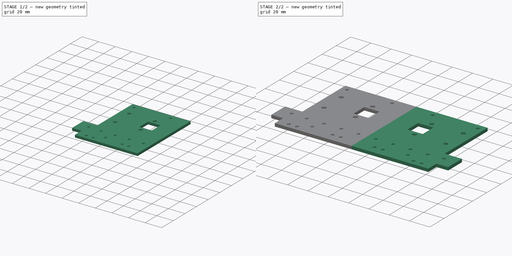
[diagram: build sequence overview — one tinted view per stage of 2, left to right]
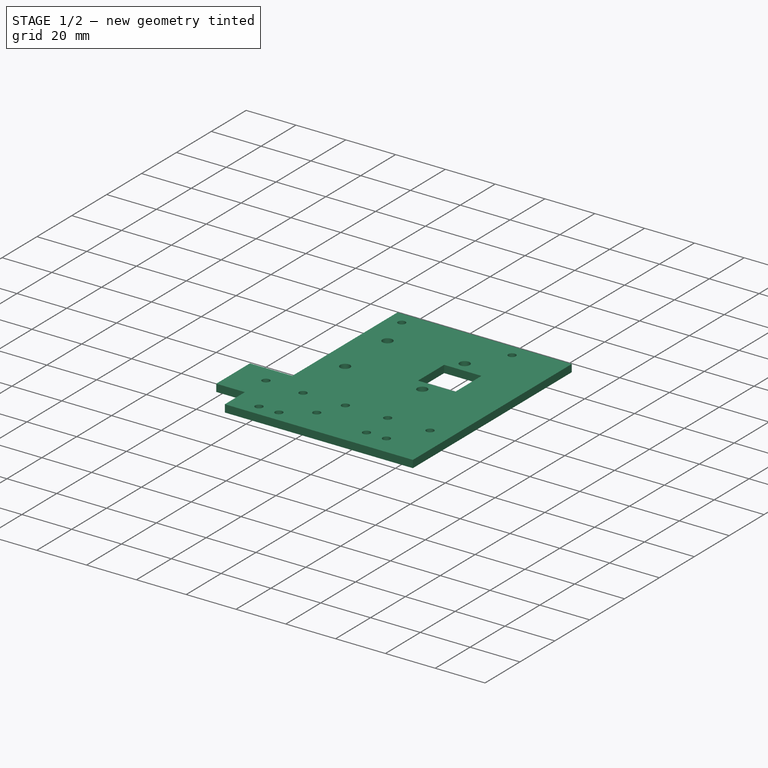
[diagram: stage 1 of 2 — iso view after this stage's code; geometry added in this stage tinted green]
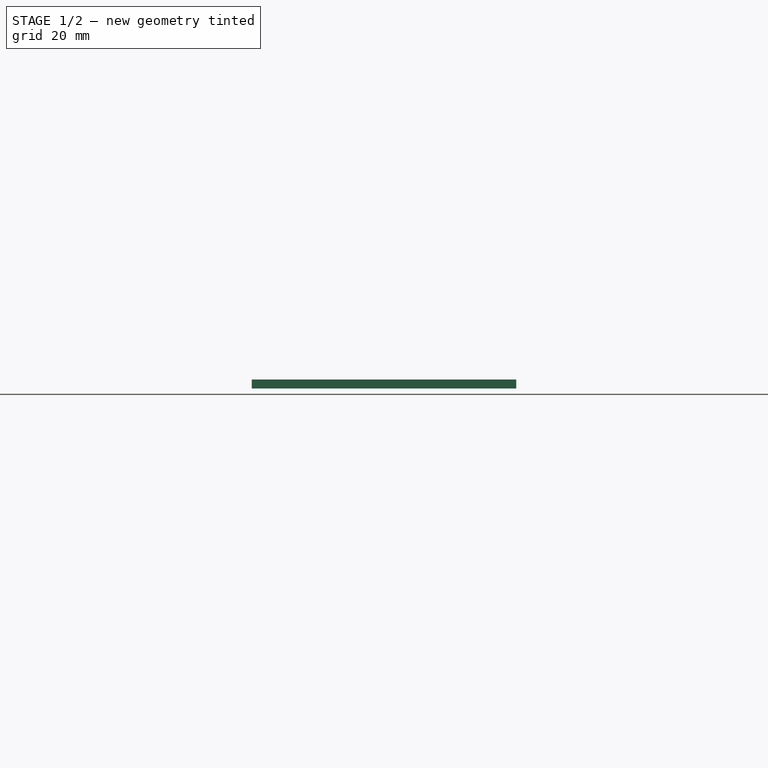
[diagram: stage 1 of 2 — front view after this stage's code; geometry added in this stage tinted green]
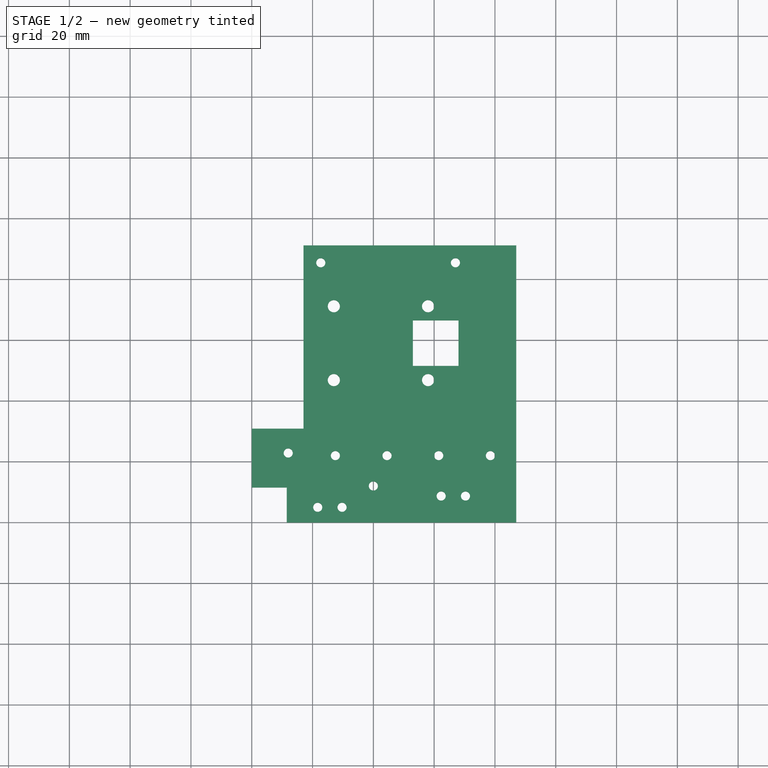
[diagram: stage 1 of 2 — top view after this stage's code; geometry added in this stage tinted green]
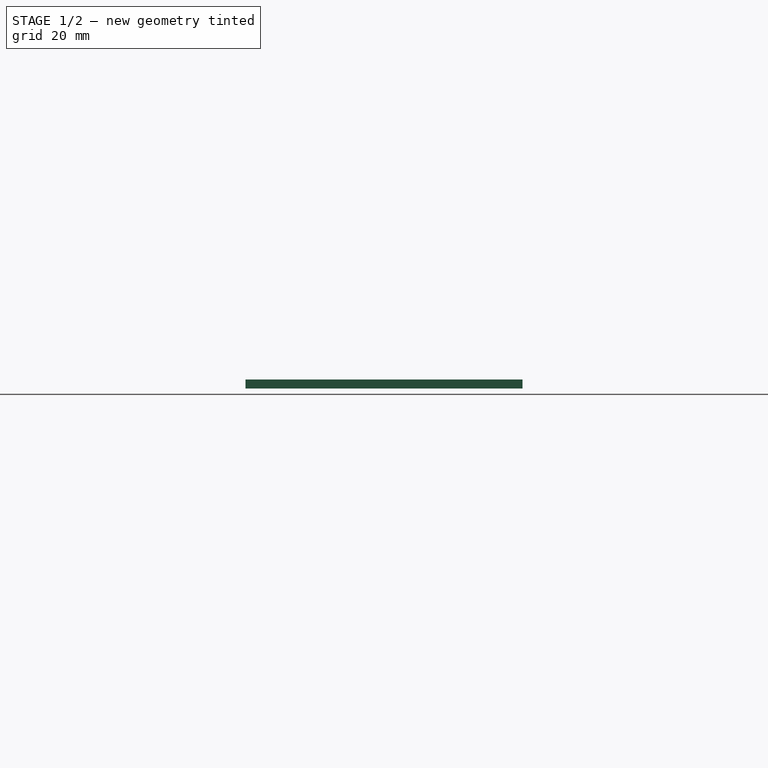
[diagram: stage 1 of 2 — right view after this stage's code; geometry added in this stage tinted green]
FCSTD DOCUMENT  (FreeCAD 0.16R6707 (Git))
Label: 1er_étage
License: All rights reserved
LicenseURL: http://en.wikipedia.org/wiki/All_rights_reserved
objects: Drawing::FeatureViewPython×38, Drawing::FeatureViewPart×3, Sketcher::SketchObject×1, PartDesign::Pad×1, PartDesign::Mirrored×1, Drawing::FeaturePage×1
note: 4 computed .brp shape members not serialized (recipe doc carries the construction recipe); baked Part::Feature solids carry a one-line shape summary decoded from their .brp

FEATURE [Sketcher::SketchObject] Sketch
  sketch-geometry (38):
    g0: LineSegment StartX=87 StartY=0 StartZ=0 EndX=87 EndY=91.15 EndZ=0
    g1: GeomPoint [constr] X=27 Y=71.15 Z=0
    g2: GeomPoint [constr] X=58 Y=71.15 Z=0
    g3: GeomPoint [constr] X=27 Y=46.85 Z=0
    g4: GeomPoint [constr] X=58 Y=46.85 Z=0
    g5: GeomPoint [constr] X=5 Y=5 Z=0
    g6: Circle CenterX=27 CenterY=71.15 CenterZ=0 NormalX=0 NormalY=0 NormalZ=1 Radius=2
    g7: Circle CenterX=58 CenterY=71.15 CenterZ=0 NormalX=0 NormalY=0 NormalZ=1 Radius=2
    g8: Circle CenterX=58 CenterY=46.85 CenterZ=0 NormalX=0 NormalY=0 NormalZ=1 Radius=2
    g9: Circle CenterX=27 CenterY=46.85 CenterZ=0 NormalX=0 NormalY=0 NormalZ=1 Radius=2
    g10: GeomPoint [constr] X=68 Y=59 Z=0
    g11: LineSegment StartX=68 StartY=59 StartZ=0 EndX=68 EndY=66.5 EndZ=0
    g12: LineSegment StartX=68 StartY=66.5 StartZ=0 EndX=53 EndY=66.5 EndZ=0
    g13: LineSegment StartX=53 StartY=66.5 StartZ=0 EndX=53 EndY=51.5 EndZ=0
    g14: LineSegment StartX=53 StartY=51.5 StartZ=0 EndX=68 EndY=51.5 EndZ=0
    g15: LineSegment StartX=68 StartY=51.5 StartZ=0 EndX=68 EndY=59 EndZ=0
    g16: LineSegment StartX=0 StartY=30.85 StartZ=0 EndX=17 EndY=30.85 EndZ=0
    g17: LineSegment StartX=17 StartY=30.85 StartZ=0 EndX=17 EndY=91.15 EndZ=0
    g18: LineSegment StartX=17 StartY=91.15 StartZ=0 EndX=87 EndY=91.15 EndZ=0
    g19: GeomPoint [constr] X=21.7 Y=5 Z=0
    g20: GeomPoint [constr] X=29.7 Y=5 Z=0
    g21: Circle CenterX=21.7 CenterY=5 CenterZ=0 NormalX=0 NormalY=0 NormalZ=1 Radius=1.5
    g22: Circle CenterX=29.7 CenterY=5 CenterZ=0 NormalX=0 NormalY=0 NormalZ=1 Radius=1.5
    g23: LineSegment StartX=87 StartY=0 StartZ=0 EndX=11.5 EndY=0 EndZ=0
    g24: LineSegment StartX=0 StartY=30.85 StartZ=0 EndX=0 EndY=11.5 EndZ=0
    g25: LineSegment StartX=0 StartY=11.5 StartZ=0 EndX=11.5 EndY=11.5 EndZ=0
    g26: LineSegment StartX=11.5 StartY=11.5 StartZ=0 EndX=11.5 EndY=0 EndZ=0
    g27: GeomPoint [constr] X=81.3 Y=8.7 Z=0
    g28: Circle CenterX=70.3 CenterY=8.7 CenterZ=0 NormalX=0 NormalY=0 NormalZ=1 Radius=1.5
    g29: Circle CenterX=62.3 CenterY=8.7 CenterZ=0 NormalX=0 NormalY=0 NormalZ=1 Radius=1.5
    g30: Circle CenterX=22.7 CenterY=85.45 CenterZ=0 NormalX=0 NormalY=0 NormalZ=1 Radius=1.5
    g31: Circle CenterX=67 CenterY=85.45 CenterZ=0 NormalX=0 NormalY=0 NormalZ=1 Radius=1.5
    g32: Circle CenterX=27.5 CenterY=22 CenterZ=0 NormalX=0 NormalY=0 NormalZ=1 Radius=1.5
    g33: Circle CenterX=44.5 CenterY=22 CenterZ=0 NormalX=0 NormalY=0 NormalZ=1 Radius=1.5
    g34: Circle CenterX=61.5 CenterY=22 CenterZ=0 NormalX=0 NormalY=0 NormalZ=1 Radius=1.5
    g35: Circle CenterX=78.5 CenterY=22 CenterZ=0 NormalX=0 NormalY=0 NormalZ=1 Radius=1.5
    g36: Circle CenterX=12 CenterY=22.85 CenterZ=0 NormalX=0 NormalY=0 NormalZ=1 Radius=1.5
    g37: Circle CenterX=40 CenterY=12 CenterZ=0 NormalX=0 NormalY=0 NormalZ=1 Radius=1.5
  constraints (98):
    c: Vertical(g0)
    c: DistanceX(g1,g2) = 31
    c: DistanceX(g3,g4) = 31
    c: DistanceY(g3,g4) = 0
    c: DistanceY(g2,g1) = 0
    c: DistanceY(g4,g2) = 24.3
    c: DistanceY(g4) = 46.85
    c: Coincident(g6,g1)
    c: Coincident(g7,g2)
    c: Coincident(g8,g4)
    c: Coincident(g9,g3)
    c: Radius(g9) = 2
    c: Equal(g9,g6)
    c: Equal(g9,g7)
    c: Equal(g9,g8)
    c: DistanceX(g4) = 58
    c: DistanceX(g2,g4) = 0
    c: DistanceX(g4,g10) = 10
    c: DistanceY(g4,g10) = 12.15
    c: Coincident(g11,g10)
    c: Vertical(g11)
    c: Coincident(g11,g12)
    c: Horizontal(g12)
    c: Coincident(g12,g13)
    c: Vertical(g13)
    c: Coincident(g13,g14)
    c: Horizontal(g14)
    c: Coincident(g14,g15)
    c: Coincident(g15,g11)
    c: Distance(g11) = 7.5
    c: Distance(g12) = 15
    c: Distance(g13) = 15
    c: Distance(g14) = 15
    c: DistanceY(g5) = 5
    c: DistanceX(g5) = 5
    c: Distance(g0) = 91.15
    c: Horizontal(g16)
    c: Coincident(g17,g16)
    c: Vertical(g17)
    c: Distance(g16) = 17
    c: Coincident(g18,g17)
    c: Coincident(g18,g0)
    c: DistanceX(g5,g19) = 16.7
    c: DistanceX(g19,g20) = 8
    c: DistanceY(g5,g19) = 0
    c: DistanceY(g20,g19) = 0
    c: Coincident(g21,g19)
    c: Coincident(g22,g20)
    c: Radius(g22) = 1.5
    c: Equal(g22,g21)
    c: Distance(g18) = 70
    c: Coincident(g23,g0)
    c: Horizontal(g23)
    c: Coincident(g24,g16)
    c: Vertical(g24)
    c: Coincident(g25,g26)
    c: Horizontal(g25)
    c: Vertical(g26)
    c: Coincident(g25,g24)
    c: Coincident(g26,g23)
    c: Distance(g25) = 11.5
    c: Distance(g26) = 11.5
    c: DistanceY(g27) = 8.7
    c: DistanceX(g23) = 11.5
    c: DistanceY(g23) = 0
    c: DistanceX(g27,g0) = 5.7
    c: DistanceY(g28,g29) = 0
    c: DistanceY(g27,g28) = 0
    c: DistanceX(g28,g27) = 11
    c: DistanceX(g29,g28) = 8
    c: Radius(g29) = 1.5
    c: Equal(g29,g28)
    c: Distance(g24) = 19.35
    c: Horizontal(g18)
    c: Radius(g30) = 1.5
    c: DistanceX(g17,g30) = 5.7
    c: DistanceY(g30,g17) = 5.7
    c: Radius(g31) = 1.5
    c: DistanceY(g31,g0) = 5.7
    c: DistanceX(g31,g0) = 20
    c: Radius(g35) = 1.5
    c: Equal(g35,g34)
    c: Equal(g35,g33)
    c: Equal(g35,g32)
    c: DistanceY(g33,g32) = 0
    c: DistanceY(g34,g33) = 0
    c: DistanceY(g35,g34) = 0
    c: DistanceX(g32,g33) = 17
    c: DistanceX(g33,g34) = 17
    c: DistanceX(g34,g35) = 17
    c: DistanceX(g35,g0) = 8.5
    c: Radius(g36) = 1.5
    c: DistanceX(g16,g36) = 12
    c: DistanceY(g36,g16) = 8
    c: Radius(g37) = 1.5
    c: DistanceY(g37) = 12
    c: DistanceX(g37) = 40
    c: DistanceY(g34) = 22
FEATURE [PartDesign::Pad] Pad
  Length = 3
  Length2 = 100
  Sketch = -> Sketch
  Type = 0
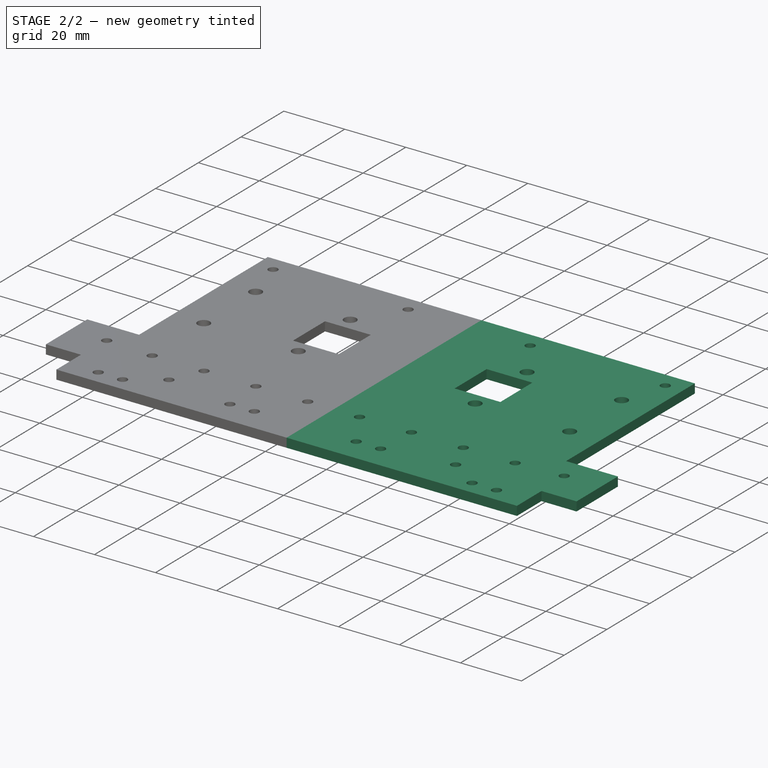
[diagram: stage 2 of 2 — iso view after this stage's code; geometry added in this stage tinted green]
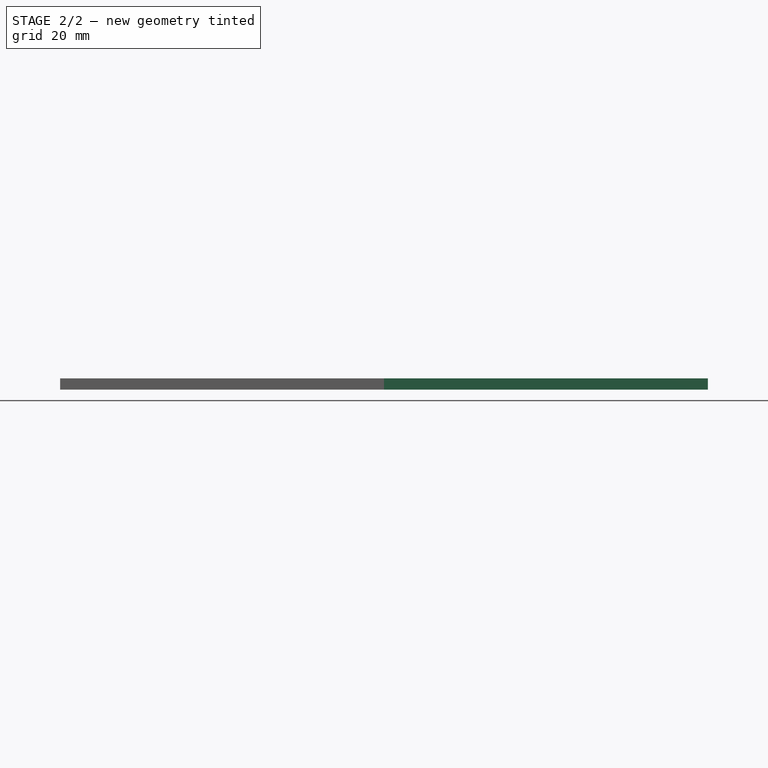
[diagram: stage 2 of 2 — front view after this stage's code; geometry added in this stage tinted green]
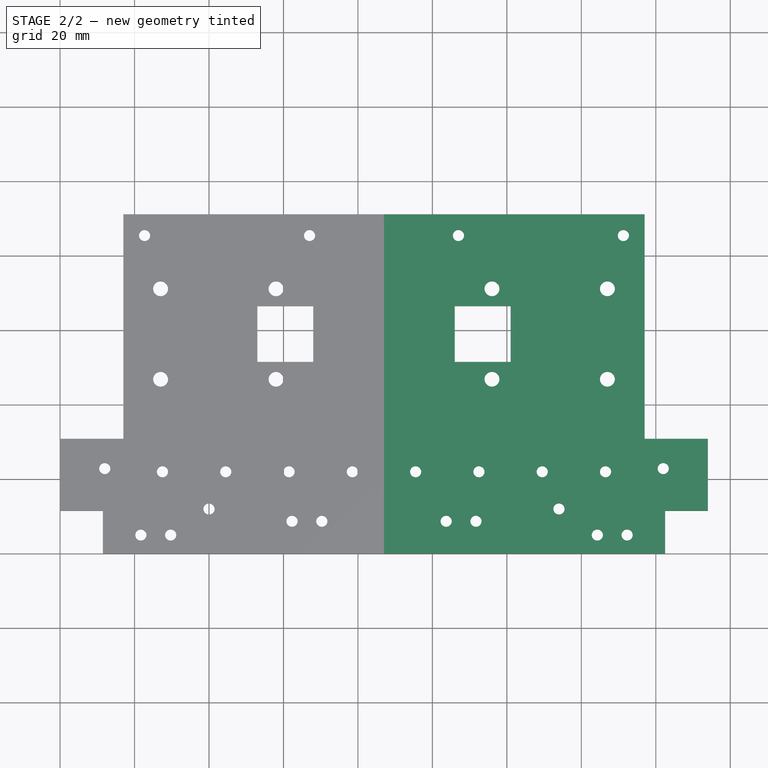
[diagram: stage 2 of 2 — top view after this stage's code; geometry added in this stage tinted green]
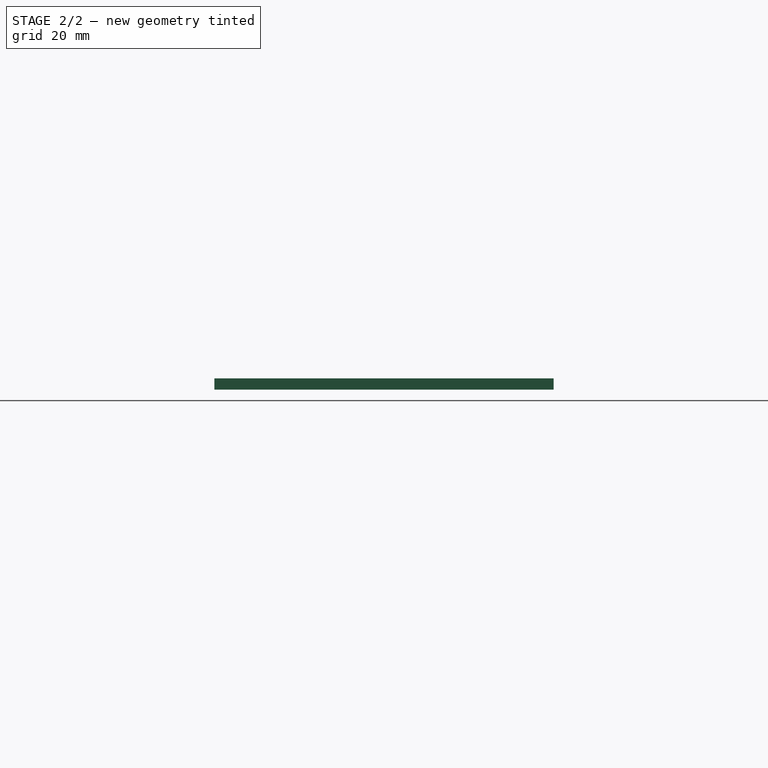
[diagram: stage 2 of 2 — right view after this stage's code; geometry added in this stage tinted green]
FEATURE [PartDesign::Mirrored] Mirrored
  MirrorPlane = -> Pad [Face1]
  Originals = -> [Pad]
FEATURE [Drawing::FeatureViewPart] Ortho  label="Ortho_0_0"
  Direction = (1,0,0)
  HiddenWidth = 0.15
  LineWidth = 0.35
  Rotation = -90
  Scale = 0.75
  ShowHiddenLines = false
  ShowSmoothLines = false
  Source = -> Mirrored
  Tolerance = 0.05
  ViewResult = <g id="Ortho_0_0"\n   transform="rotate(-90,77.0458,198.917) translate(77.0458,198.917) scale(0.75,0.75)"\n  >\n<g   stroke="rgb(0, 0, 0)"\n   stroke-width="0.466667"\n   stroke-linecap="butt"\n   stroke-linejoin="miter"\n   fill="none"\n   transform="scale(1,-1)"\n  >\n<path id= "1" d=" M 0 0 L 3 0 " />\n<path id= "2" d=" M 0 -11.5 L 0 0 " />\n<path id= "3" d=" M 0 -30.85 L 0 -91.15 " />\n<path id= "4" d=" M 0 -30.85 L 0 -11.5 " />\n<path id= "5" d=" M 3 -11.5 L 3 0 " />\n<path id= "6" d=" M 3 -30.85 L 3 -91.15 " />\n<path id= "7" d=" M 3 -30.85 L 3 -11.5 " />\n<path id= "8" d=" M 0 -11.5 L 3 -11.5 " />\n<path id= "9" d=" M 0 -91.15 L 3 -91.15 " />\n<path id= "10" d=" M 0 -11.5 L 3 -11.5 " />\n<path id= "11" d=" M 0 -30.85 L 3 -30.85 " />\n</g>\n</g>
  Visible = true
  X = 77.0458
  Y = 198.917
FEATURE [Drawing::FeatureViewPart] Ortho001  label="Ortho_0_1"
  Direction = (0,0,1)
  HiddenWidth = 0.15
  LineWidth = 0.35
  Rotation = 90
  Scale = 0.75
  ShowHiddenLines = false
  ShowSmoothLines = false
  Source = -> Mirrored
  Tolerance = 0.05
  ViewResult = <blob: 2643 chars omitted>
  Visible = true
  X = 77.0458
  Y = 38.0833
FEATURE [Drawing::FeatureViewPart] Ortho002  label="Ortho_1_1"
  Direction = (0.57735,0.57735,0.57735)
  HiddenWidth = 0.15
  LineWidth = 0.35
  Rotation = 120
  Scale = 0.75
  ShowHiddenLines = false
  ShowSmoothLines = false
  Source = -> Mirrored
  Tolerance = 0.05
  ViewResult = <blob: 9621 chars omitted>
  Visible = true
  X = 299.673
  Y = 63.6593
FEATURE [Drawing::FeatureViewPython] dim001  # drawing view (typed FeaturePython)
  Rotation = 0
  ViewResult = <g> \n  <line x1="147.408300" y1="103.333300" x2="182.886739" y2="103.333300" style="stroke:rgb(0,0,255);stroke-width:0.50" />\n<line x1="147.408300" y1="50.833300" x2="182.886739" y2="50.833300" style="stroke:rgb(0,0,255);stroke-width:0.50" />\n<line x1="181.886739" y1="103.333300" x2="181.886739" y2="50.833300" style="stroke:rgb(0,0,255);stroke-width:0.50" /> \n  <polygon points="181.886739,50.833300 180.886739,53.833300 181.886739,54.833300 182.886739,53.833300" style="fill:rgb(0,0,255);stroke:rgb(0,0,255);stroke-width:0" /><polygon points="181.886739,103.333300 182.886739,100.333300 181.886739,99.333300 180.886739,100.333300" style="fill:rgb(0,0,255);stroke:rgb(0,0,255);stroke-width:0" /> \n  <text x="179.886739" y="77.083300" font-family="inherit" font-size="3.6" fill="rgb(0,0,255)" text-anchor="middle" transform="rotate(-90.000000 179.886739,77.083300)" >70</text> </g>
  Visible = true
  X = 0
  Y = 0
  arrowL1 = 3
  arrowL2 = 1
  arrowW = 2
  arrow_scheme = 0
  autoPlaceOffset = 2
  autoPlaceText = true
  click1_x = 181.887
  click1_y = 64.396
  click2_x = 181.887
  click2_y = 64.396
  comma_decimal_place = false
  dimension_line_overshoot = 1
  gap_datum_points = 2
  halfDimension_linear = false
  lineColor = rgb(0,0,255)
  strokeWidth = 0.5
  textFormat_linear = %(value)3.3f
  textRenderer_color = rgb(0,0,255)
  textRenderer_family = inherit
  textRenderer_size = 3.6
  unit_custom_scale = 1
  unit_scheme = 0
FEATURE [Drawing::FeatureViewPython] dim002  # drawing view (typed FeaturePython)
  Rotation = 0
  ViewResult = <g> \n  <line x1="85.670800" y1="36.083300" x2="85.670800" y2="23.948122" style="stroke:rgb(0,0,255);stroke-width:0.50" />\n<line x1="100.183300" y1="36.083300" x2="100.183300" y2="23.948122" style="stroke:rgb(0,0,255);stroke-width:0.50" />\n<line x1="85.670800" y1="24.948122" x2="100.183300" y2="24.948122" style="stroke:rgb(0,0,255);stroke-width:0.50" /> \n  <polygon points="100.183300,24.948122 97.183300,23.948122 96.183300,24.948122 97.183300,25.948122" style="fill:rgb(0,0,255);stroke:rgb(0,0,255);stroke-width:0" /><polygon points="85.670800,24.948122 88.670800,25.948122 89.670800,24.948122 88.670800,23.948122" style="fill:rgb(0,0,255);stroke:rgb(0,0,255);stroke-width:0" /> \n  <text x="92.927050" y="22.948122" font-family="inherit" font-size="3.6" fill="rgb(0,0,255)" text-anchor="middle" transform="rotate(0.000000 92.927050,22.948122)" >19.35</text> </g>
  Visible = true
  X = 0
  Y = 0
  arrowL1 = 3
  arrowL2 = 1
  arrowW = 2
  arrow_scheme = 0
  autoPlaceOffset = 2
  autoPlaceText = true
  click1_x = 101.925
  click1_y = 24.9481
  click2_x = 101.925
  click2_y = 24.9481
  comma_decimal_place = false
  dimension_line_overshoot = 1
  gap_datum_points = 2
  halfDimension_linear = false
  lineColor = rgb(0,0,255)
  strokeWidth = 0.5
  textFormat_linear = %(value)3.3f
  textRenderer_color = rgb(0,0,255)
  textRenderer_family = inherit
  textRenderer_size = 3.6
  unit_custom_scale = 1
  unit_scheme = 0
FEATURE [Drawing::FeatureViewPython] dim003  # drawing view (typed FeaturePython)
  Rotation = 0
  ViewResult = <g> \n  <line x1="102.183300" y1="50.833300" x2="112.733472" y2="50.833300" style="stroke:rgb(0,0,255);stroke-width:0.50" />\n<line x1="102.183300" y1="38.083300" x2="112.733472" y2="38.083300" style="stroke:rgb(0,0,255);stroke-width:0.50" />\n<line x1="111.733472" y1="50.833300" x2="111.733472" y2="38.083300" style="stroke:rgb(0,0,255);stroke-width:0.50" /> \n  <polygon points="111.733472,38.083300 110.733472,41.083300 111.733472,42.083300 112.733472,41.083300" style="fill:rgb(0,0,255);stroke:rgb(0,0,255);stroke-width:0" /><polygon points="111.733472,50.833300 112.733472,47.833300 111.733472,46.833300 110.733472,47.833300" style="fill:rgb(0,0,255);stroke:rgb(0,0,255);stroke-width:0" /> \n  <text x="109.733472" y="44.458300" font-family="inherit" font-size="3.6" fill="rgb(0,0,255)" text-anchor="middle" transform="rotate(-90.000000 109.733472,44.458300)" >17</text> </g>
  Visible = true
  X = 0
  Y = 0
  arrowL1 = 3
  arrowL2 = 1
  arrowW = 2
  arrow_scheme = 0
  autoPlaceOffset = 2
  autoPlaceText = true
  click1_x = 111.733
  click1_y = 38.8082
  click2_x = 111.733
  click2_y = 38.8082
  comma_decimal_place = false
  dimension_line_overshoot = 1
  gap_datum_points = 2
  halfDimension_linear = false
  lineColor = rgb(0,0,255)
  strokeWidth = 0.5
  textFormat_linear = %(value)3.3f
  textRenderer_color = rgb(0,0,255)
  textRenderer_family = inherit
  textRenderer_size = 3.6
  unit_custom_scale = 1
  unit_scheme = 0
FEATURE [Drawing::FeatureViewPython] dim004  # drawing view (typed FeaturePython)
  Rotation = 0
  ViewResult = <g> \n  <line x1="100.183300" y1="48.833300" x2="100.183300" y2="30.984772" style="stroke:rgb(0,0,255);stroke-width:0.50" />\n<line x1="145.408300" y1="48.833300" x2="145.408300" y2="30.984772" style="stroke:rgb(0,0,255);stroke-width:0.50" />\n<line x1="100.183300" y1="31.984772" x2="145.408300" y2="31.984772" style="stroke:rgb(0,0,255);stroke-width:0.50" /> \n  <polygon points="145.408300,31.984772 142.408300,30.984772 141.408300,31.984772 142.408300,32.984772" style="fill:rgb(0,0,255);stroke:rgb(0,0,255);stroke-width:0" /><polygon points="100.183300,31.984772 103.183300,32.984772 104.183300,31.984772 103.183300,30.984772" style="fill:rgb(0,0,255);stroke:rgb(0,0,255);stroke-width:0" /> \n  <text x="122.795800" y="29.984772" font-family="inherit" font-size="3.6" fill="rgb(0,0,255)" text-anchor="middle" transform="rotate(0.000000 122.795800,29.984772)" >60.3</text> </g>
  Visible = true
  X = 0
  Y = 0
  arrowL1 = 3
  arrowL2 = 1
  arrowW = 2
  arrow_scheme = 0
  autoPlaceOffset = 2
  autoPlaceText = true
  click1_x = 143.718
  click1_y = 31.9848
  click2_x = 143.718
  click2_y = 31.9848
  comma_decimal_place = false
  dimension_line_overshoot = 1
  gap_datum_points = 2
  halfDimension_linear = false
  lineColor = rgb(0,0,255)
  strokeWidth = 0.5
  textFormat_linear = %(value)3.3f
  textRenderer_color = rgb(0,0,255)
  textRenderer_family = inherit
  textRenderer_size = 3.6
  unit_custom_scale = 1
  unit_scheme = 0
FEATURE [Drawing::FeatureViewPython] dim005  # drawing view (typed FeaturePython)
  Rotation = 0
  ViewResult = <g> \n  <line x1="77.045800" y1="44.708300" x2="77.045800" y2="15.632082" style="stroke:rgb(0,0,255);stroke-width:0.50" />\n<line x1="85.670800" y1="44.708300" x2="85.670800" y2="15.632082" style="stroke:rgb(0,0,255);stroke-width:0.50" />\n<line x1="77.045800" y1="16.632082" x2="85.670800" y2="16.632082" style="stroke:rgb(0,0,255);stroke-width:0.50" /> \n  <polygon points="85.670800,16.632082 88.670800,17.632082 89.670800,16.632082 88.670800,15.632082" style="fill:rgb(0,0,255);stroke:rgb(0,0,255);stroke-width:0" /><polygon points="77.045800,16.632082 74.045800,15.632082 73.045800,16.632082 74.045800,17.632082" style="fill:rgb(0,0,255);stroke:rgb(0,0,255);stroke-width:0" /> \n  <text x="81.358300" y="14.632082" font-family="inherit" font-size="3.6" fill="rgb(0,0,255)" text-anchor="middle" transform="rotate(0.000000 81.358300,14.632082)" >11.5</text> </g>
  Visible = true
  X = 0
  Y = 0
  arrowL1 = 3
  arrowL2 = 1
  arrowW = 2
  arrow_scheme = 0
  autoPlaceOffset = 2
  autoPlaceText = true
  click1_x = 84.2266
  click1_y = 16.6321
  click2_x = 84.2266
  click2_y = 16.6321
  comma_decimal_place = false
  dimension_line_overshoot = 1
  gap_datum_points = 2
  halfDimension_linear = false
  lineColor = rgb(0,0,255)
  strokeWidth = 0.5
  textFormat_linear = %(value)3.3f
  textRenderer_color = rgb(0,0,255)
  textRenderer_family = inherit
  textRenderer_size = 3.6
  unit_custom_scale = 1
  unit_scheme = 0
FEATURE [Drawing::FeatureViewPython] dim006  # drawing view (typed FeaturePython)
  Rotation = 0
  ViewResult = <g> \n  <line x1="83.670800" y1="46.708300" x2="60.623995" y2="46.708300" style="stroke:rgb(0,0,255);stroke-width:0.50" />\n<line x1="83.670800" y1="38.083300" x2="60.623995" y2="38.083300" style="stroke:rgb(0,0,255);stroke-width:0.50" />\n<line x1="61.623995" y1="46.708300" x2="61.623995" y2="38.083300" style="stroke:rgb(0,0,255);stroke-width:0.50" /> \n  <polygon points="61.623995,38.083300 62.623995,35.083300 61.623995,34.083300 60.623995,35.083300" style="fill:rgb(0,0,255);stroke:rgb(0,0,255);stroke-width:0" /><polygon points="61.623995,46.708300 60.623995,49.708300 61.623995,50.708300 62.623995,49.708300" style="fill:rgb(0,0,255);stroke:rgb(0,0,255);stroke-width:0" /> \n  <text x="59.623995" y="42.395800" font-family="inherit" font-size="3.6" fill="rgb(0,0,255)" text-anchor="middle" transform="rotate(-90.000000 59.623995,42.395800)" >11.5</text> </g>
  Visible = true
  X = 0
  Y = 0
  arrowL1 = 3
  arrowL2 = 1
  arrowW = 2
  arrow_scheme = 0
  autoPlaceOffset = 2
  autoPlaceText = true
  click1_x = 61.624
  click1_y = 36.6759
  click2_x = 61.624
  click2_y = 36.6759
  comma_decimal_place = false
  dimension_line_overshoot = 1
  gap_datum_points = 2
  halfDimension_linear = false
  lineColor = rgb(0,0,255)
  strokeWidth = 0.5
  textFormat_linear = %(value)3.3f
  textRenderer_color = rgb(0,0,255)
  textRenderer_family = inherit
  textRenderer_size = 3.6
  unit_custom_scale = 1
  unit_scheme = 0
FEATURE [Drawing::FeatureViewPython] dim007  # drawing view (typed FeaturePython)
  Rotation = 0
  ViewResult = <g> \n  <line x1="115.670800" y1="75.833300" x2="115.670800" y2="71.712049" style="stroke:rgb(0,0,255);stroke-width:0.50" />\n<line x1="126.920800" y1="75.833300" x2="126.920800" y2="71.712049" style="stroke:rgb(0,0,255);stroke-width:0.50" />\n<line x1="115.670800" y1="72.712049" x2="126.920800" y2="72.712049" style="stroke:rgb(0,0,255);stroke-width:0.50" /> \n  <polygon points="126.920800,72.712049 123.920800,71.712049 122.920800,72.712049 123.920800,73.712049" style="fill:rgb(0,0,255);stroke:rgb(0,0,255);stroke-width:0" /><polygon points="115.670800,72.712049 118.670800,73.712049 119.670800,72.712049 118.670800,71.712049" style="fill:rgb(0,0,255);stroke:rgb(0,0,255);stroke-width:0" /> \n  <text x="121.295800" y="70.712049" font-family="inherit" font-size="3.6" fill="rgb(0,0,255)" text-anchor="middle" transform="rotate(0.000000 121.295800,70.712049)" >15</text> </g>
  Visible = true
  X = 0
  Y = 0
  arrowL1 = 3
  arrowL2 = 1
  arrowW = 2
  arrow_scheme = 0
  autoPlaceOffset = 2
  autoPlaceText = true
  click1_x = 126.873
  click1_y = 72.712
  click2_x = 126.873
  click2_y = 72.712
  comma_decimal_place = false
  dimension_line_overshoot = 1
  gap_datum_points = 2
  halfDimension_linear = false
  lineColor = rgb(0,0,255)
  strokeWidth = 0.5
  textFormat_linear = %(value)3.3f
  textRenderer_color = rgb(0,0,255)
  textRenderer_family = inherit
  textRenderer_size = 3.6
  unit_custom_scale = 1
  unit_scheme = 0
FEATURE [Drawing::FeatureViewPython] dim008  # drawing view (typed FeaturePython)
  Rotation = 0
  ViewResult = <g> \n  <line x1="113.670800" y1="89.083300" x2="102.493958" y2="89.083300" style="stroke:rgb(0,0,255);stroke-width:0.50" />\n<line x1="113.670800" y1="77.833300" x2="102.493958" y2="77.833300" style="stroke:rgb(0,0,255);stroke-width:0.50" />\n<line x1="103.493958" y1="89.083300" x2="103.493958" y2="77.833300" style="stroke:rgb(0,0,255);stroke-width:0.50" /> \n  <polygon points="103.493958,77.833300 102.493958,80.833300 103.493958,81.833300 104.493958,80.833300" style="fill:rgb(0,0,255);stroke:rgb(0,0,255);stroke-width:0" /><polygon points="103.493958,89.083300 104.493958,86.083300 103.493958,85.083300 102.493958,86.083300" style="fill:rgb(0,0,255);stroke:rgb(0,0,255);stroke-width:0" /> \n  <text x="101.493958" y="83.458300" font-family="inherit" font-size="3.6" fill="rgb(0,0,255)" text-anchor="middle" transform="rotate(-90.000000 101.493958,83.458300)" >15</text> </g>
  Visible = true
  X = 0
  Y = 0
  arrowL1 = 3
  arrowL2 = 1
  arrowW = 2
  arrow_scheme = 0
  autoPlaceOffset = 2
  autoPlaceText = true
  click1_x = 103.494
  click1_y = 77.9138
  click2_x = 103.494
  click2_y = 77.9138
  comma_decimal_place = false
  dimension_line_overshoot = 1
  gap_datum_points = 2
  halfDimension_linear = false
  lineColor = rgb(0,0,255)
  strokeWidth = 0.5
  textFormat_linear = %(value)3.3f
  textRenderer_color = rgb(0,0,255)
  textRenderer_family = inherit
  textRenderer_size = 3.6
  unit_custom_scale = 1
  unit_scheme = 0
FEATURE [Drawing::FeatureViewPython] dim009  # drawing view (typed FeaturePython)
  Rotation = 0
  ViewResult = <g> \n  <line x1="75.045800" y1="103.333300" x2="41.012633" y2="103.333300" style="stroke:rgb(0,0,255);stroke-width:0.50" />\n<line x1="75.045800" y1="46.708300" x2="41.012633" y2="46.708300" style="stroke:rgb(0,0,255);stroke-width:0.50" />\n<line x1="42.012633" y1="103.333300" x2="42.012633" y2="46.708300" style="stroke:rgb(0,0,255);stroke-width:0.50" /> \n  <polygon points="42.012633,46.708300 41.012633,49.708300 42.012633,50.708300 43.012633,49.708300" style="fill:rgb(0,0,255);stroke:rgb(0,0,255);stroke-width:0" /><polygon points="42.012633,103.333300 43.012633,100.333300 42.012633,99.333300 41.012633,100.333300" style="fill:rgb(0,0,255);stroke:rgb(0,0,255);stroke-width:0" /> \n  <text x="40.012633" y="75.020800" font-family="inherit" font-size="3.6" fill="rgb(0,0,255)" text-anchor="middle" transform="rotate(-90.000000 40.012633,75.020800)" >75.5</text> </g>
  Visible = true
  X = 0
  Y = 0
  arrowL1 = 3
  arrowL2 = 1
  arrowW = 2
  arrow_scheme = 0
  autoPlaceOffset = 2
  autoPlaceText = true
  click1_x = 42.0126
  click1_y = 55.1517
  click2_x = 42.0126
  click2_y = 55.1517
  comma_decimal_place = false
  dimension_line_overshoot = 1
  gap_datum_points = 2
  halfDimension_linear = false
  lineColor = rgb(0,0,255)
  strokeWidth = 0.5
  textFormat_linear = %(value)3.3f
  textRenderer_color = rgb(0,0,255)
  textRenderer_family = inherit
  textRenderer_size = 3.6
  unit_custom_scale = 1
  unit_scheme = 0
FEATURE [Drawing::FeatureViewPython] dim010  # drawing view (typed FeaturePython)
  Rotation = 0
  ViewResult = <g> \n  <line x1="147.408300" y1="198.917000" x2="161.364788" y2="198.917000" style="stroke:rgb(0,0,255);stroke-width:0.50" />\n<line x1="147.408300" y1="196.667000" x2="161.364788" y2="196.667000" style="stroke:rgb(0,0,255);stroke-width:0.50" />\n<line x1="160.364788" y1="198.917000" x2="160.364788" y2="196.667000" style="stroke:rgb(0,0,255);stroke-width:0.50" /> \n  <polygon points="160.364788,196.667000 161.364788,193.667000 160.364788,192.667000 159.364788,193.667000" style="fill:rgb(0,0,255);stroke:rgb(0,0,255);stroke-width:0" /><polygon points="160.364788,198.917000 159.364788,201.917000 160.364788,202.917000 161.364788,201.917000" style="fill:rgb(0,0,255);stroke:rgb(0,0,255);stroke-width:0" /> \n  <text x="158.364788" y="197.792000" font-family="inherit" font-size="3.6" fill="rgb(0,0,255)" text-anchor="middle" transform="rotate(-90.000000 158.364788,197.792000)" >3</text> </g>
  Visible = true
  X = 0
  Y = 0
  arrowL1 = 3
  arrowL2 = 1
  arrowW = 2
  arrow_scheme = 0
  autoPlaceOffset = 2
  autoPlaceText = true
  click1_x = 160.365
  click1_y = 194.55
  click2_x = 160.365
  click2_y = 194.55
  comma_decimal_place = false
  dimension_line_overshoot = 1
  gap_datum_points = 2
  halfDimension_linear = false
  lineColor = rgb(0,0,255)
  strokeWidth = 0.5
  textFormat_linear = %(value)3.3f
  textRenderer_color = rgb(0,0,255)
  textRenderer_family = inherit
  textRenderer_size = 3.6
  unit_custom_scale = 1
  unit_scheme = 0
FEATURE [Drawing::FeatureViewPython] dim011  # drawing view (typed FeaturePython)
  Rotation = 0
  ViewResult = <g> \n  <line x1="77.045800" y1="161.958300" x2="77.045800" y2="187.399833" style="stroke:rgb(0,0,255);stroke-width:0.50" />\n<line x1="145.408300" y1="157.833300" x2="145.408300" y2="187.399833" style="stroke:rgb(0,0,255);stroke-width:0.50" />\n<line x1="77.045800" y1="186.399833" x2="145.408300" y2="186.399833" style="stroke:rgb(0,0,255);stroke-width:0.50" /> \n  <polygon points="145.408300,186.399833 142.408300,185.399833 141.408300,186.399833 142.408300,187.399833" style="fill:rgb(0,0,255);stroke:rgb(0,0,255);stroke-width:0" /><polygon points="77.045800,186.399833 80.045800,187.399833 81.045800,186.399833 80.045800,185.399833" style="fill:rgb(0,0,255);stroke:rgb(0,0,255);stroke-width:0" /> \n  <text x="111.227050" y="184.399833" font-family="inherit" font-size="3.6" fill="rgb(0,0,255)" text-anchor="middle" transform="rotate(0.000000 111.227050,184.399833)" >91.15</text> </g>
  Visible = true
  X = 0
  Y = 0
  arrowL1 = 3
  arrowL2 = 1
  arrowW = 2
  arrow_scheme = 0
  autoPlaceOffset = 2
  autoPlaceText = true
  click1_x = 132.676
  click1_y = 186.4
  click2_x = 132.676
  click2_y = 186.4
  comma_decimal_place = false
  dimension_line_overshoot = 1
  gap_datum_points = 2
  halfDimension_linear = false
  lineColor = rgb(0,0,255)
  strokeWidth = 0.5
  textFormat_linear = %(value)3.3f
  textRenderer_color = rgb(0,0,255)
  textRenderer_family = inherit
  textRenderer_size = 3.6
  unit_custom_scale = 1
  unit_scheme = 0
FEATURE [Drawing::FeatureViewPython] dim012  # drawing view (typed FeaturePython)
  Rotation = 0
  ViewResult = <g> \n  <line x1="82.795800" y1="54.358300" x2="89.726395" y2="54.358300" style="stroke:rgb(0,0,255);stroke-width:0.50" />\n<line x1="82.795800" y1="60.358300" x2="89.726395" y2="60.358300" style="stroke:rgb(0,0,255);stroke-width:0.50" />\n<line x1="88.726395" y1="54.358300" x2="88.726395" y2="60.358300" style="stroke:rgb(0,0,255);stroke-width:0.50" /> \n  <polygon points="88.726395,60.358300 87.726395,63.358300 88.726395,64.358300 89.726395,63.358300" style="fill:rgb(0,0,255);stroke:rgb(0,0,255);stroke-width:0" /><polygon points="88.726395,54.358300 89.726395,51.358300 88.726395,50.358300 87.726395,51.358300" style="fill:rgb(0,0,255);stroke:rgb(0,0,255);stroke-width:0" /> \n  <text x="86.726395" y="57.358300" font-family="inherit" font-size="3.6" fill="rgb(0,0,255)" text-anchor="middle" transform="rotate(-90.000000 86.726395,57.358300)" >8</text> </g>
  Visible = true
  X = 0
  Y = 0
  arrowL1 = 3
  arrowL2 = 1
  arrowW = 2
  arrow_scheme = 0
  autoPlaceOffset = 2
  autoPlaceText = true
  click1_x = 88.7264
  click1_y = 60.9968
  click2_x = 88.7264
  click2_y = 60.9968
  comma_decimal_place = false
  dimension_line_overshoot = 1
  gap_datum_points = 2
  halfDimension_linear = false
  lineColor = rgb(0,0,255)
  strokeWidth = 0.5
  textFormat_linear = %(value)3.3f
  textRenderer_color = rgb(0,0,255)
  textRenderer_family = inherit
  textRenderer_size = 3.6
  unit_custom_scale = 1
  unit_scheme = 0
FEATURE [Drawing::FeatureViewPython] dim013  # drawing view (typed FeaturePython)
  Rotation = 0
  ViewResult = <g> \n  <line x1="82.795800" y1="54.358300" x2="89.549521" y2="54.358300" style="stroke:rgb(0,0,255);stroke-width:0.50" />\n<line x1="79.045800" y1="46.708300" x2="89.549521" y2="46.708300" style="stroke:rgb(0,0,255);stroke-width:0.50" />\n<line x1="88.549521" y1="54.358300" x2="88.549521" y2="46.708300" style="stroke:rgb(0,0,255);stroke-width:0.50" /> \n  <polygon points="88.549521,46.708300 89.549521,43.708300 88.549521,42.708300 87.549521,43.708300" style="fill:rgb(0,0,255);stroke:rgb(0,0,255);stroke-width:0" /><polygon points="88.549521,54.358300 87.549521,57.358300 88.549521,58.358300 89.549521,57.358300" style="fill:rgb(0,0,255);stroke:rgb(0,0,255);stroke-width:0" /> \n  <text x="86.549521" y="50.533300" font-family="inherit" font-size="3.6" fill="rgb(0,0,255)" text-anchor="middle" transform="rotate(-90.000000 86.549521,50.533300)" >10.2</text> </g>
  Visible = true
  X = 0
  Y = 0
  arrowL1 = 3
  arrowL2 = 1
  arrowW = 2
  arrow_scheme = 0
  autoPlaceOffset = 2
  autoPlaceText = true
  click1_x = 88.5495
  click1_y = 50.059
  click2_x = 88.5495
  click2_y = 50.059
  comma_decimal_place = false
  dimension_line_overshoot = 1
  gap_datum_points = 2
  halfDimension_linear = false
  lineColor = rgb(0,0,255)
  strokeWidth = 0.5
  textFormat_linear = %(value)3.3f
  textRenderer_color = rgb(0,0,255)
  textRenderer_family = inherit
  textRenderer_size = 3.6
  unit_custom_scale = 1
  unit_scheme = 0
FEATURE [Drawing::FeatureViewPython] dim014  # drawing view (typed FeaturePython)
  Rotation = 0
  ViewResult = <g> \n  <line x1="77.045800" y1="44.708300" x2="77.045800" y2="44.060280" style="stroke:rgb(0,0,255);stroke-width:0.50" />\n<line x1="80.795800" y1="52.358300" x2="80.795800" y2="44.060280" style="stroke:rgb(0,0,255);stroke-width:0.50" />\n<line x1="77.045800" y1="45.060280" x2="80.795800" y2="45.060280" style="stroke:rgb(0,0,255);stroke-width:0.50" /> \n  <polygon points="80.795800,45.060280 83.795800,46.060280 84.795800,45.060280 83.795800,44.060280" style="fill:rgb(0,0,255);stroke:rgb(0,0,255);stroke-width:0" /><polygon points="77.045800,45.060280 74.045800,44.060280 73.045800,45.060280 74.045800,46.060280" style="fill:rgb(0,0,255);stroke:rgb(0,0,255);stroke-width:0" /> \n  <text x="78.920800" y="43.060280" font-family="inherit" font-size="3.6" fill="rgb(0,0,255)" text-anchor="middle" transform="rotate(0.000000 78.920800,43.060280)" >5</text> </g>
  Visible = true
  X = 0
  Y = 0
  arrowL1 = 3
  arrowL2 = 1
  arrowW = 2
  arrow_scheme = 0
  autoPlaceOffset = 2
  autoPlaceText = true
  click1_x = 80.2659
  click1_y = 45.0603
  click2_x = 80.2659
  click2_y = 45.0603
  comma_decimal_place = false
  dimension_line_overshoot = 1
  gap_datum_points = 2
  halfDimension_linear = false
  lineColor = rgb(0,0,255)
  strokeWidth = 0.5
  textFormat_linear = %(value)3.3f
  textRenderer_color = rgb(0,0,255)
  textRenderer_family = inherit
  textRenderer_size = 3.6
  unit_custom_scale = 1
  unit_scheme = 0
FEATURE [Drawing::FeatureViewPython] dim015  # drawing view (typed FeaturePython)
  Rotation = 0
  ViewResult = <g> \n  <line x1="94.183300" y1="45.083300" x2="94.183300" y2="42.459292" style="stroke:rgb(0,0,255);stroke-width:0.50" />\n<line x1="100.183300" y1="48.833300" x2="100.183300" y2="42.459292" style="stroke:rgb(0,0,255);stroke-width:0.50" />\n<line x1="94.183300" y1="43.459292" x2="100.183300" y2="43.459292" style="stroke:rgb(0,0,255);stroke-width:0.50" /> \n  <polygon points="100.183300,43.459292 103.183300,44.459292 104.183300,43.459292 103.183300,42.459292" style="fill:rgb(0,0,255);stroke:rgb(0,0,255);stroke-width:0" /><polygon points="94.183300,43.459292 91.183300,42.459292 90.183300,43.459292 91.183300,44.459292" style="fill:rgb(0,0,255);stroke:rgb(0,0,255);stroke-width:0" /> \n  <text x="97.183300" y="41.459292" font-family="inherit" font-size="3.6" fill="rgb(0,0,255)" text-anchor="middle" transform="rotate(0.000000 97.183300,41.459292)" >8</text> </g>
  Visible = true
  X = 0
  Y = 0
  arrowL1 = 3
  arrowL2 = 1
  arrowW = 2
  arrow_scheme = 0
  autoPlaceOffset = 2
  autoPlaceText = true
  click1_x = 97.1798
  click1_y = 43.4593
  click2_x = 97.1798
  click2_y = 43.4593
  comma_decimal_place = false
  dimension_line_overshoot = 1
  gap_datum_points = 2
  halfDimension_linear = false
  lineColor = rgb(0,0,255)
  strokeWidth = 0.5
  textFormat_linear = %(value)3.3f
  textRenderer_color = rgb(0,0,255)
  textRenderer_family = inherit
  textRenderer_size = 3.6
  unit_custom_scale = 1
  unit_scheme = 0
FEATURE [Drawing::FeatureViewPython] dim016  # drawing view (typed FeaturePython)
  Rotation = 0
  ViewResult = <g> \n  <line x1="96.183300" y1="47.083300" x2="106.630224" y2="47.083300" style="stroke:rgb(0,0,255);stroke-width:0.50" />\n<line x1="102.183300" y1="50.833300" x2="106.630224" y2="50.833300" style="stroke:rgb(0,0,255);stroke-width:0.50" />\n<line x1="105.630224" y1="47.083300" x2="105.630224" y2="50.833300" style="stroke:rgb(0,0,255);stroke-width:0.50" /> \n  <polygon points="105.630224,50.833300 104.630224,53.833300 105.630224,54.833300 106.630224,53.833300" style="fill:rgb(0,0,255);stroke:rgb(0,0,255);stroke-width:0" /><polygon points="105.630224,47.083300 106.630224,44.083300 105.630224,43.083300 104.630224,44.083300" style="fill:rgb(0,0,255);stroke:rgb(0,0,255);stroke-width:0" /> \n  <text x="103.630224" y="48.958300" font-family="inherit" font-size="3.6" fill="rgb(0,0,255)" text-anchor="middle" transform="rotate(-90.000000 103.630224,48.958300)" >5</text> </g>
  Visible = true
  X = 0
  Y = 0
  arrowL1 = 3
  arrowL2 = 1
  arrowW = 2
  arrow_scheme = 0
  autoPlaceOffset = 2
  autoPlaceText = true
  click1_x = 105.63
  click1_y = 49.1935
  click2_x = 105.63
  click2_y = 49.1935
  comma_decimal_place = false
  dimension_line_overshoot = 1
  gap_datum_points = 2
  halfDimension_linear = false
  lineColor = rgb(0,0,255)
  strokeWidth = 0.5
  textFormat_linear = %(value)3.3f
  textRenderer_color = rgb(0,0,255)
  textRenderer_family = inherit
  textRenderer_size = 3.6
  unit_custom_scale = 1
  unit_scheme = 0
FEATURE [Drawing::FeatureViewPython] dim017  # drawing view (typed FeaturePython)
  Rotation = 0
  ViewResult = <g> \n  <line x1="75.045800" y1="103.333300" x2="70.564477" y2="103.333300" style="stroke:rgb(0,0,255);stroke-width:0.50" />\n<line x1="81.570800" y1="90.808300" x2="70.564477" y2="90.808300" style="stroke:rgb(0,0,255);stroke-width:0.50" />\n<line x1="71.564477" y1="103.333300" x2="71.564477" y2="90.808300" style="stroke:rgb(0,0,255);stroke-width:0.50" /> \n  <polygon points="71.564477,90.808300 70.564477,93.808300 71.564477,94.808300 72.564477,93.808300" style="fill:rgb(0,0,255);stroke:rgb(0,0,255);stroke-width:0" /><polygon points="71.564477,103.333300 72.564477,100.333300 71.564477,99.333300 70.564477,100.333300" style="fill:rgb(0,0,255);stroke:rgb(0,0,255);stroke-width:0" /> \n  <text x="69.564477" y="97.070800" font-family="inherit" font-size="3.6" fill="rgb(0,0,255)" text-anchor="middle" transform="rotate(-90.000000 69.564477,97.070800)" >16.7</text> </g>
  Visible = true
  X = 0
  Y = 0
  arrowL1 = 3
  arrowL2 = 1
  arrowW = 2
  arrow_scheme = 0
  autoPlaceOffset = 2
  autoPlaceText = true
  click1_x = 71.5645
  click1_y = 91.0306
  click2_x = 71.5645
  click2_y = 91.0306
  comma_decimal_place = false
  dimension_line_overshoot = 1
  gap_datum_points = 2
  halfDimension_linear = false
  lineColor = rgb(0,0,255)
  strokeWidth = 0.5
  textFormat_linear = %(value)3.3f
  textRenderer_color = rgb(0,0,255)
  textRenderer_family = inherit
  textRenderer_size = 3.6
  unit_custom_scale = 1
  unit_scheme = 0
FEATURE [Drawing::FeatureViewPython] dim018  # drawing view (typed FeaturePython)
  Rotation = 0
  ViewResult = <g> \n  <line x1="77.045800" y1="101.333300" x2="77.045800" y2="97.175482" style="stroke:rgb(0,0,255);stroke-width:0.50" />\n<line x1="83.570800" y1="92.808300" x2="83.570800" y2="99.175482" style="stroke:rgb(0,0,255);stroke-width:0.50" />\n<line x1="77.045800" y1="98.175482" x2="83.570800" y2="98.175482" style="stroke:rgb(0,0,255);stroke-width:0.50" /> \n  <polygon points="83.570800,98.175482 86.570800,99.175482 87.570800,98.175482 86.570800,97.175482" style="fill:rgb(0,0,255);stroke:rgb(0,0,255);stroke-width:0" /><polygon points="77.045800,98.175482 74.045800,97.175482 73.045800,98.175482 74.045800,99.175482" style="fill:rgb(0,0,255);stroke:rgb(0,0,255);stroke-width:0" /> \n  <text x="80.308300" y="96.175482" font-family="inherit" font-size="3.6" fill="rgb(0,0,255)" text-anchor="middle" transform="rotate(0.000000 80.308300,96.175482)" >8.7</text> </g>
  Visible = true
  X = 0
  Y = 0
  arrowL1 = 3
  arrowL2 = 1
  arrowW = 2
  arrow_scheme = 0
  autoPlaceOffset = 2
  autoPlaceText = true
  click1_x = 80.9985
  click1_y = 98.1755
  click2_x = 80.9985
  click2_y = 98.1755
  comma_decimal_place = false
  dimension_line_overshoot = 1
  gap_datum_points = 2
  halfDimension_linear = false
  lineColor = rgb(0,0,255)
  strokeWidth = 0.5
  textFormat_linear = %(value)3.3f
  textRenderer_color = rgb(0,0,255)
  textRenderer_family = inherit
  textRenderer_size = 3.6
  unit_custom_scale = 1
  unit_scheme = 0
FEATURE [Drawing::FeatureViewPython] dim019  # drawing view (typed FeaturePython)
  Rotation = 0
  ViewResult = <g> \n  <line x1="81.570800" y1="90.808300" x2="73.816835" y2="90.808300" style="stroke:rgb(0,0,255);stroke-width:0.50" />\n<line x1="81.570800" y1="84.808300" x2="73.816835" y2="84.808300" style="stroke:rgb(0,0,255);stroke-width:0.50" />\n<line x1="74.816835" y1="90.808300" x2="74.816835" y2="84.808300" style="stroke:rgb(0,0,255);stroke-width:0.50" /> \n  <polygon points="74.816835,84.808300 75.816835,81.808300 74.816835,80.808300 73.816835,81.808300" style="fill:rgb(0,0,255);stroke:rgb(0,0,255);stroke-width:0" /><polygon points="74.816835,90.808300 73.816835,93.808300 74.816835,94.808300 75.816835,93.808300" style="fill:rgb(0,0,255);stroke:rgb(0,0,255);stroke-width:0" /> \n  <text x="72.816835" y="87.808300" font-family="inherit" font-size="3.6" fill="rgb(0,0,255)" text-anchor="middle" transform="rotate(-90.000000 72.816835,87.808300)" >8</text> </g>
  Visible = true
  X = 0
  Y = 0
  arrowL1 = 3
  arrowL2 = 1
  arrowW = 2
  arrow_scheme = 0
  autoPlaceOffset = 2
  autoPlaceText = true
  click1_x = 74.8168
  click1_y = 86.2675
  click2_x = 74.8168
  click2_y = 86.2675
  comma_decimal_place = false
  dimension_line_overshoot = 1
  gap_datum_points = 2
  halfDimension_linear = false
  lineColor = rgb(0,0,255)
  strokeWidth = 0.5
  textFormat_linear = %(value)3.3f
  textRenderer_color = rgb(0,0,255)
  textRenderer_family = inherit
  textRenderer_size = 3.6
  unit_custom_scale = 1
  unit_scheme = 0
FEATURE [Drawing::FeatureViewPython] dim020  # drawing view (typed FeaturePython)
  Rotation = 0
  ViewResult = <g> \n  <line x1="91.545800" y1="96.958300" x2="89.811812" y2="96.958300" style="stroke:rgb(0,0,255);stroke-width:0.50" />\n<line x1="91.545800" y1="84.208300" x2="89.811812" y2="84.208300" style="stroke:rgb(0,0,255);stroke-width:0.50" />\n<line x1="90.811812" y1="96.958300" x2="90.811812" y2="84.208300" style="stroke:rgb(0,0,255);stroke-width:0.50" /> \n  <polygon points="90.811812,84.208300 89.811812,87.208300 90.811812,88.208300 91.811812,87.208300" style="fill:rgb(0,0,255);stroke:rgb(0,0,255);stroke-width:0" /><polygon points="90.811812,96.958300 91.811812,93.958300 90.811812,92.958300 89.811812,93.958300" style="fill:rgb(0,0,255);stroke:rgb(0,0,255);stroke-width:0" /> \n  <text x="88.811812" y="90.583300" font-family="inherit" font-size="3.6" fill="rgb(0,0,255)" text-anchor="middle" transform="rotate(-90.000000 88.811812,90.583300)" >17</text> </g>
  Visible = true
  X = 0
  Y = 0
  arrowL1 = 3
  arrowL2 = 1
  arrowW = 2
  arrow_scheme = 0
  autoPlaceOffset = 2
  autoPlaceText = true
  click1_x = 90.8118
  click1_y = 91.5814
  click2_x = 90.8118
  click2_y = 91.5814
  comma_decimal_place = false
  dimension_line_overshoot = 1
  gap_datum_points = 2
  halfDimension_linear = false
  lineColor = rgb(0,0,255)
  strokeWidth = 0.5
  textFormat_linear = %(value)3.3f
  textRenderer_color = rgb(0,0,255)
  textRenderer_family = inherit
  textRenderer_size = 3.6
  unit_custom_scale = 1
  unit_scheme = 0
FEATURE [Drawing::FeatureViewPython] dim021  # drawing view (typed FeaturePython)
  Rotation = 0
  ViewResult = <g> \n  <line x1="79.045800" y1="103.333300" x2="103.474647" y2="103.333300" style="stroke:rgb(0,0,255);stroke-width:0.50" />\n<line x1="95.545800" y1="96.958300" x2="103.474647" y2="96.958300" style="stroke:rgb(0,0,255);stroke-width:0.50" />\n<line x1="102.474647" y1="103.333300" x2="102.474647" y2="96.958300" style="stroke:rgb(0,0,255);stroke-width:0.50" /> \n  <polygon points="102.474647,96.958300 103.474647,93.958300 102.474647,92.958300 101.474647,93.958300" style="fill:rgb(0,0,255);stroke:rgb(0,0,255);stroke-width:0" /><polygon points="102.474647,103.333300 101.474647,106.333300 102.474647,107.333300 103.474647,106.333300" style="fill:rgb(0,0,255);stroke:rgb(0,0,255);stroke-width:0" /> \n  <text x="100.474647" y="100.145800" font-family="inherit" font-size="3.6" fill="rgb(0,0,255)" text-anchor="middle" transform="rotate(-90.000000 100.474647,100.145800)" >8.5</text> </g>
  Visible = true
  X = 0
  Y = 0
  arrowL1 = 3
  arrowL2 = 1
  arrowW = 2
  arrow_scheme = 0
  autoPlaceOffset = 2
  autoPlaceText = true
  click1_x = 102.475
  click1_y = 100.975
  click2_x = 102.475
  click2_y = 100.975
  comma_decimal_place = false
  dimension_line_overshoot = 1
  gap_datum_points = 2
  halfDimension_linear = false
  lineColor = rgb(0,0,255)
  strokeWidth = 0.5
  textFormat_linear = %(value)3.3f
  textRenderer_color = rgb(0,0,255)
  textRenderer_family = inherit
  textRenderer_size = 3.6
  unit_custom_scale = 1
  unit_scheme = 0
FEATURE [Drawing::FeatureViewPython] dim022  # drawing view (typed FeaturePython)
  Rotation = 0
  ViewResult = <g> \n  <line x1="93.545800" y1="98.958300" x2="93.545800" y2="110.187272" style="stroke:rgb(0,0,255);stroke-width:0.50" />\n<line x1="83.570800" y1="92.808300" x2="83.570800" y2="110.187272" style="stroke:rgb(0,0,255);stroke-width:0.50" />\n<line x1="93.545800" y1="109.187272" x2="83.570800" y2="109.187272" style="stroke:rgb(0,0,255);stroke-width:0.50" /> \n  <polygon points="83.570800,109.187272 80.570800,108.187272 79.570800,109.187272 80.570800,110.187272" style="fill:rgb(0,0,255);stroke:rgb(0,0,255);stroke-width:0" /><polygon points="93.545800,109.187272 96.545800,110.187272 97.545800,109.187272 96.545800,108.187272" style="fill:rgb(0,0,255);stroke:rgb(0,0,255);stroke-width:0" /> \n  <text x="88.558300" y="107.187272" font-family="inherit" font-size="3.6" fill="rgb(0,0,255)" text-anchor="middle" transform="rotate(0.000000 88.558300,107.187272)" >13.3</text> </g>
  Visible = true
  X = 0
  Y = 0
  arrowL1 = 3
  arrowL2 = 1
  arrowW = 2
  arrow_scheme = 0
  autoPlaceOffset = 2
  autoPlaceText = true
  click1_x = 88.1211
  click1_y = 109.187
  click2_x = 88.1211
  click2_y = 109.187
  comma_decimal_place = false
  dimension_line_overshoot = 1
  gap_datum_points = 2
  halfDimension_linear = false
  lineColor = rgb(0,0,255)
  strokeWidth = 0.5
  textFormat_linear = %(value)3.3f
  textRenderer_color = rgb(0,0,255)
  textRenderer_family = inherit
  textRenderer_size = 3.6
  unit_custom_scale = 1
  unit_scheme = 0
FEATURE [Drawing::FeatureViewPython] dim023  # drawing view (typed FeaturePython)
  Rotation = 0
  ViewResult = <g> \n  <line x1="95.545800" y1="58.708300" x2="107.611076" y2="58.708300" style="stroke:rgb(0,0,255);stroke-width:0.50" />\n<line x1="102.183300" y1="50.833300" x2="107.611076" y2="50.833300" style="stroke:rgb(0,0,255);stroke-width:0.50" />\n<line x1="106.611076" y1="58.708300" x2="106.611076" y2="50.833300" style="stroke:rgb(0,0,255);stroke-width:0.50" /> \n  <polygon points="106.611076,50.833300 107.611076,47.833300 106.611076,46.833300 105.611076,47.833300" style="fill:rgb(0,0,255);stroke:rgb(0,0,255);stroke-width:0" /><polygon points="106.611076,58.708300 105.611076,61.708300 106.611076,62.708300 107.611076,61.708300" style="fill:rgb(0,0,255);stroke:rgb(0,0,255);stroke-width:0" /> \n  <text x="104.611076" y="54.770800" font-family="inherit" font-size="3.6" fill="rgb(0,0,255)" text-anchor="middle" transform="rotate(-90.000000 104.611076,54.770800)" >10.5</text> </g>
  Visible = true
  X = 0
  Y = 0
  arrowL1 = 3
  arrowL2 = 1
  arrowW = 2
  arrow_scheme = 0
  autoPlaceOffset = 2
  autoPlaceText = true
  click1_x = 106.611
  click1_y = 57.9457
  click2_x = 106.611
  click2_y = 57.9457
  comma_decimal_place = false
  dimension_line_overshoot = 1
  gap_datum_points = 2
  halfDimension_linear = false
  lineColor = rgb(0,0,255)
  strokeWidth = 0.5
  textFormat_linear = %(value)3.3f
  textRenderer_color = rgb(0,0,255)
  textRenderer_family = inherit
  textRenderer_size = 3.6
  unit_custom_scale = 1
  unit_scheme = 0
FEATURE [Drawing::FeatureViewPython] dim024  # drawing view (typed FeaturePython)
  Rotation = 0
  ViewResult = <g> \n  <line x1="93.545800" y1="60.708300" x2="93.545800" y2="67.179810" style="stroke:rgb(0,0,255);stroke-width:0.50" />\n<line x1="100.183300" y1="52.833300" x2="100.183300" y2="67.179810" style="stroke:rgb(0,0,255);stroke-width:0.50" />\n<line x1="93.545800" y1="66.179810" x2="100.183300" y2="66.179810" style="stroke:rgb(0,0,255);stroke-width:0.50" /> \n  <polygon points="100.183300,66.179810 103.183300,67.179810 104.183300,66.179810 103.183300,65.179810" style="fill:rgb(0,0,255);stroke:rgb(0,0,255);stroke-width:0" /><polygon points="93.545800,66.179810 90.545800,65.179810 89.545800,66.179810 90.545800,67.179810" style="fill:rgb(0,0,255);stroke:rgb(0,0,255);stroke-width:0" /> \n  <text x="96.864550" y="64.179810" font-family="inherit" font-size="3.6" fill="rgb(0,0,255)" text-anchor="middle" transform="rotate(0.000000 96.864550,64.179810)" >8.85</text> </g>
  Visible = true
  X = 0
  Y = 0
  arrowL1 = 3
  arrowL2 = 1
  arrowW = 2
  arrow_scheme = 0
  autoPlaceOffset = 2
  autoPlaceText = true
  click1_x = 99.2697
  click1_y = 66.1798
  click2_x = 99.2697
  click2_y = 66.1798
  comma_decimal_place = false
  dimension_line_overshoot = 1
  gap_datum_points = 2
  halfDimension_linear = false
  lineColor = rgb(0,0,255)
  strokeWidth = 0.5
  textFormat_linear = %(value)3.3f
  textRenderer_color = rgb(0,0,255)
  textRenderer_family = inherit
  textRenderer_size = 3.6
  unit_custom_scale = 1
  unit_scheme = 0
FEATURE [Drawing::FeatureViewPython] dim025  # drawing view (typed FeaturePython)
  Rotation = 0
  ViewResult = <g> \n  <line x1="78.795800" y1="60.358300" x2="73.288227" y2="60.358300" style="stroke:rgb(0,0,255);stroke-width:0.50" />\n<line x1="84.045800" y1="68.083300" x2="73.288227" y2="68.083300" style="stroke:rgb(0,0,255);stroke-width:0.50" />\n<line x1="74.288227" y1="60.358300" x2="74.288227" y2="68.083300" style="stroke:rgb(0,0,255);stroke-width:0.50" /> \n  <polygon points="74.288227,68.083300 73.288227,71.083300 74.288227,72.083300 75.288227,71.083300" style="fill:rgb(0,0,255);stroke:rgb(0,0,255);stroke-width:0" /><polygon points="74.288227,60.358300 75.288227,57.358300 74.288227,56.358300 73.288227,57.358300" style="fill:rgb(0,0,255);stroke:rgb(0,0,255);stroke-width:0" /> \n  <text x="72.288227" y="64.220800" font-family="inherit" font-size="3.6" fill="rgb(0,0,255)" text-anchor="middle" transform="rotate(-90.000000 72.288227,64.220800)" >10.3</text> </g>
  Visible = true
  X = 0
  Y = 0
  arrowL1 = 3
  arrowL2 = 1
  arrowW = 2
  arrow_scheme = 0
  autoPlaceOffset = 2
  autoPlaceText = true
  click1_x = 74.2882
  click1_y = 66.9997
  click2_x = 74.2882
  click2_y = 66.9997
  comma_decimal_place = false
  dimension_line_overshoot = 1
  gap_datum_points = 2
  halfDimension_linear = false
  lineColor = rgb(0,0,255)
  strokeWidth = 0.5
  textFormat_linear = %(value)3.3f
  textRenderer_color = rgb(0,0,255)
  textRenderer_family = inherit
  textRenderer_size = 3.6
  unit_custom_scale = 1
  unit_scheme = 0
FEATURE [Drawing::FeatureViewPython] dim026  # drawing view (typed FeaturePython)
  Rotation = 0
  ViewResult = <g> \n  <line x1="80.795800" y1="62.358300" x2="80.795800" y2="75.716964" style="stroke:rgb(0,0,255);stroke-width:0.50" />\n<line x1="86.045800" y1="70.083300" x2="86.045800" y2="75.716964" style="stroke:rgb(0,0,255);stroke-width:0.50" />\n<line x1="80.795800" y1="74.716964" x2="86.045800" y2="74.716964" style="stroke:rgb(0,0,255);stroke-width:0.50" /> \n  <polygon points="86.045800,74.716964 89.045800,75.716964 90.045800,74.716964 89.045800,73.716964" style="fill:rgb(0,0,255);stroke:rgb(0,0,255);stroke-width:0" /><polygon points="80.795800,74.716964 77.795800,73.716964 76.795800,74.716964 77.795800,75.716964" style="fill:rgb(0,0,255);stroke:rgb(0,0,255);stroke-width:0" /> \n  <text x="83.420800" y="72.716964" font-family="inherit" font-size="3.6" fill="rgb(0,0,255)" text-anchor="middle" transform="rotate(0.000000 83.420800,72.716964)" >7</text> </g>
  Visible = true
  X = 0
  Y = 0
  arrowL1 = 3
  arrowL2 = 1
  arrowW = 2
  arrow_scheme = 0
  autoPlaceOffset = 2
  autoPlaceText = true
  click1_x = 84.3872
  click1_y = 74.717
  click2_x = 84.3872
  click2_y = 74.717
  comma_decimal_place = false
  dimension_line_overshoot = 1
  gap_datum_points = 2
  halfDimension_linear = false
  lineColor = rgb(0,0,255)
  strokeWidth = 0.5
  textFormat_linear = %(value)3.3f
  textRenderer_color = rgb(0,0,255)
  textRenderer_family = inherit
  textRenderer_size = 3.6
  unit_custom_scale = 1
  unit_scheme = 0
FEATURE [Drawing::FeatureViewPython] dim027  # drawing view (typed FeaturePython)
  Rotation = 0
  ViewResult = <g> \n  <line x1="86.045800" y1="70.083300" x2="86.045800" y2="82.467939" style="stroke:rgb(0,0,255);stroke-width:0.50" />\n<line x1="93.545800" y1="73.458300" x2="93.545800" y2="82.467939" style="stroke:rgb(0,0,255);stroke-width:0.50" />\n<line x1="86.045800" y1="81.467939" x2="93.545800" y2="81.467939" style="stroke:rgb(0,0,255);stroke-width:0.50" /> \n  <polygon points="93.545800,81.467939 96.545800,82.467939 97.545800,81.467939 96.545800,80.467939" style="fill:rgb(0,0,255);stroke:rgb(0,0,255);stroke-width:0" /><polygon points="86.045800,81.467939 83.045800,80.467939 82.045800,81.467939 83.045800,82.467939" style="fill:rgb(0,0,255);stroke:rgb(0,0,255);stroke-width:0" /> \n  <text x="89.795800" y="79.467939" font-family="inherit" font-size="3.6" fill="rgb(0,0,255)" text-anchor="middle" transform="rotate(0.000000 89.795800,79.467939)" >10</text> </g>
  Visible = true
  X = 0
  Y = 0
  arrowL1 = 3
  arrowL2 = 1
  arrowW = 2
  arrow_scheme = 0
  autoPlaceOffset = 2
  autoPlaceText = true
  click1_x = 92.001
  click1_y = 81.4679
  click2_x = 92.001
  click2_y = 81.4679
  comma_decimal_place = false
  dimension_line_overshoot = 1
  gap_datum_points = 2
  halfDimension_linear = false
  lineColor = rgb(0,0,255)
  strokeWidth = 0.5
  textFormat_linear = %(value)3.3f
  textRenderer_color = rgb(0,0,255)
  textRenderer_family = inherit
  textRenderer_size = 3.6
  unit_custom_scale = 1
  unit_scheme = 0
FEATURE [Drawing::FeatureViewPython] dim028  # drawing view (typed FeaturePython)
  Rotation = 0
  ViewResult = <g> \n  <line x1="88.045800" y1="68.083300" x2="109.663592" y2="68.083300" style="stroke:rgb(0,0,255);stroke-width:0.50" />\n<line x1="95.545800" y1="71.458300" x2="109.663592" y2="71.458300" style="stroke:rgb(0,0,255);stroke-width:0.50" />\n<line x1="108.663592" y1="68.083300" x2="108.663592" y2="71.458300" style="stroke:rgb(0,0,255);stroke-width:0.50" /> \n  <polygon points="108.663592,71.458300 107.663592,74.458300 108.663592,75.458300 109.663592,74.458300" style="fill:rgb(0,0,255);stroke:rgb(0,0,255);stroke-width:0" /><polygon points="108.663592,68.083300 109.663592,65.083300 108.663592,64.083300 107.663592,65.083300" style="fill:rgb(0,0,255);stroke:rgb(0,0,255);stroke-width:0" /> \n  <text x="106.663592" y="69.770800" font-family="inherit" font-size="3.6" fill="rgb(0,0,255)" text-anchor="middle" transform="rotate(-90.000000 106.663592,69.770800)" >4.5</text> </g>
  Visible = true
  X = 0
  Y = 0
  arrowL1 = 3
  arrowL2 = 1
  arrowW = 2
  arrow_scheme = 0
  autoPlaceOffset = 2
  autoPlaceText = true
  click1_x = 108.664
  click1_y = 70.3397
  click2_x = 108.664
  click2_y = 70.3397
  comma_decimal_place = false
  dimension_line_overshoot = 1
  gap_datum_points = 2
  halfDimension_linear = false
  lineColor = rgb(0,0,255)
  strokeWidth = 0.5
  textFormat_linear = %(value)3.3f
  textRenderer_color = rgb(0,0,255)
  textRenderer_family = inherit
  textRenderer_size = 3.6
  unit_custom_scale = 1
  unit_scheme = 0
FEATURE [Drawing::FeatureViewPython] dim029  # drawing view (typed FeaturePython)
  Rotation = 0
  ViewResult = <g> \n  <line x1="141.133300" y1="86.333300" x2="141.133300" y2="82.610266" style="stroke:rgb(0,0,255);stroke-width:0.50" />\n<line x1="145.408300" y1="101.333300" x2="145.408300" y2="82.610266" style="stroke:rgb(0,0,255);stroke-width:0.50" />\n<line x1="141.133300" y1="83.610266" x2="145.408300" y2="83.610266" style="stroke:rgb(0,0,255);stroke-width:0.50" /> \n  <polygon points="145.408300,83.610266 148.408300,84.610266 149.408300,83.610266 148.408300,82.610266" style="fill:rgb(0,0,255);stroke:rgb(0,0,255);stroke-width:0" /><polygon points="141.133300,83.610266 138.133300,82.610266 137.133300,83.610266 138.133300,84.610266" style="fill:rgb(0,0,255);stroke:rgb(0,0,255);stroke-width:0" /> \n  <text x="143.270800" y="81.610266" font-family="inherit" font-size="3.6" fill="rgb(0,0,255)" text-anchor="middle" transform="rotate(0.000000 143.270800,81.610266)" >5.7</text> </g>
  Visible = true
  X = 0
  Y = 0
  arrowL1 = 3
  arrowL2 = 1
  arrowW = 2
  arrow_scheme = 0
  autoPlaceOffset = 2
  autoPlaceText = true
  click1_x = 144.607
  click1_y = 83.6103
  click2_x = 144.607
  click2_y = 83.6103
  comma_decimal_place = false
  dimension_line_overshoot = 1
  gap_datum_points = 2
  halfDimension_linear = false
  lineColor = rgb(0,0,255)
  strokeWidth = 0.5
  textFormat_linear = %(value)3.3f
  textRenderer_color = rgb(0,0,255)
  textRenderer_family = inherit
  textRenderer_size = 3.6
  unit_custom_scale = 1
  unit_scheme = 0
FEATURE [Drawing::FeatureViewPython] dim030  # drawing view (typed FeaturePython)
  Rotation = 0
  ViewResult = <g> \n  <line x1="143.133300" y1="88.333300" x2="153.700316" y2="88.333300" style="stroke:rgb(0,0,255);stroke-width:0.50" />\n<line x1="147.408300" y1="103.333300" x2="153.700316" y2="103.333300" style="stroke:rgb(0,0,255);stroke-width:0.50" />\n<line x1="152.700316" y1="88.333300" x2="152.700316" y2="103.333300" style="stroke:rgb(0,0,255);stroke-width:0.50" /> \n  <polygon points="152.700316,103.333300 153.700316,100.333300 152.700316,99.333300 151.700316,100.333300" style="fill:rgb(0,0,255);stroke:rgb(0,0,255);stroke-width:0" /><polygon points="152.700316,88.333300 151.700316,91.333300 152.700316,92.333300 153.700316,91.333300" style="fill:rgb(0,0,255);stroke:rgb(0,0,255);stroke-width:0" /> \n  <text x="150.700316" y="95.833300" font-family="inherit" font-size="3.6" fill="rgb(0,0,255)" text-anchor="middle" transform="rotate(-90.000000 150.700316,95.833300)" >20</text> </g>
  Visible = true
  X = 0
  Y = 0
  arrowL1 = 3
  arrowL2 = 1
  arrowW = 2
  arrow_scheme = 0
  autoPlaceOffset = 2
  autoPlaceText = true
  click1_x = 152.7
  click1_y = 98.4875
  click2_x = 152.7
  click2_y = 98.4875
  comma_decimal_place = false
  dimension_line_overshoot = 1
  gap_datum_points = 2
  halfDimension_linear = false
  lineColor = rgb(0,0,255)
  strokeWidth = 0.5
  textFormat_linear = %(value)3.3f
  textRenderer_color = rgb(0,0,255)
  textRenderer_family = inherit
  textRenderer_size = 3.6
  unit_custom_scale = 1
  unit_scheme = 0
FEATURE [Drawing::FeatureViewPython] dim031  # drawing view (typed FeaturePython)
  Rotation = 0
  ViewResult = <g> \n  <line x1="141.133300" y1="53.108300" x2="141.133300" y2="46.968194" style="stroke:rgb(0,0,255);stroke-width:0.50" />\n<line x1="145.408300" y1="48.833300" x2="145.408300" y2="46.968194" style="stroke:rgb(0,0,255);stroke-width:0.50" />\n<line x1="141.133300" y1="47.968194" x2="145.408300" y2="47.968194" style="stroke:rgb(0,0,255);stroke-width:0.50" /> \n  <polygon points="145.408300,47.968194 148.408300,48.968194 149.408300,47.968194 148.408300,46.968194" style="fill:rgb(0,0,255);stroke:rgb(0,0,255);stroke-width:0" /><polygon points="141.133300,47.968194 138.133300,46.968194 137.133300,47.968194 138.133300,48.968194" style="fill:rgb(0,0,255);stroke:rgb(0,0,255);stroke-width:0" /> \n  <text x="143.270800" y="45.968194" font-family="inherit" font-size="3.6" fill="rgb(0,0,255)" text-anchor="middle" transform="rotate(0.000000 143.270800,45.968194)" >5.7</text> </g>
  Visible = true
  X = 0
  Y = 0
  arrowL1 = 3
  arrowL2 = 1
  arrowW = 2
  arrow_scheme = 0
  autoPlaceOffset = 2
  autoPlaceText = true
  click1_x = 144.502
  click1_y = 47.9682
  click2_x = 144.502
  click2_y = 47.9682
  comma_decimal_place = false
  dimension_line_overshoot = 1
  gap_datum_points = 2
  halfDimension_linear = false
  lineColor = rgb(0,0,255)
  strokeWidth = 0.5
  textFormat_linear = %(value)3.3f
  textRenderer_color = rgb(0,0,255)
  textRenderer_family = inherit
  textRenderer_size = 3.6
  unit_custom_scale = 1
  unit_scheme = 0
FEATURE [Drawing::FeatureViewPython] dim032  # drawing view (typed FeaturePython)
  Rotation = 0
  ViewResult = <g> \n  <line x1="139.133300" y1="55.108300" x2="136.928928" y2="55.108300" style="stroke:rgb(0,0,255);stroke-width:0.50" />\n<line x1="143.408300" y1="50.833300" x2="136.928928" y2="50.833300" style="stroke:rgb(0,0,255);stroke-width:0.50" />\n<line x1="137.928928" y1="55.108300" x2="137.928928" y2="50.833300" style="stroke:rgb(0,0,255);stroke-width:0.50" /> \n  <polygon points="137.928928,50.833300 138.928928,47.833300 137.928928,46.833300 136.928928,47.833300" style="fill:rgb(0,0,255);stroke:rgb(0,0,255);stroke-width:0" /><polygon points="137.928928,55.108300 136.928928,58.108300 137.928928,59.108300 138.928928,58.108300" style="fill:rgb(0,0,255);stroke:rgb(0,0,255);stroke-width:0" /> \n  <text x="135.928928" y="52.970800" font-family="inherit" font-size="3.6" fill="rgb(0,0,255)" text-anchor="middle" transform="rotate(-90.000000 135.928928,52.970800)" >5.7</text> </g>
  Visible = true
  X = 0
  Y = 0
  arrowL1 = 3
  arrowL2 = 1
  arrowW = 2
  arrow_scheme = 0
  autoPlaceOffset = 2
  autoPlaceText = true
  click1_x = 137.929
  click1_y = 53.7809
  click2_x = 137.929
  click2_y = 53.7809
  comma_decimal_place = false
  dimension_line_overshoot = 1
  gap_datum_points = 2
  halfDimension_linear = false
  lineColor = rgb(0,0,255)
  strokeWidth = 0.5
  textFormat_linear = %(value)3.3f
  textRenderer_color = rgb(0,0,255)
  textRenderer_family = inherit
  textRenderer_size = 3.6
  unit_custom_scale = 1
  unit_scheme = 0
FEATURE [Drawing::FeatureViewPython] dim033  # drawing view (typed FeaturePython)
  Rotation = 0
  ViewResult = <g> \n  <line x1="112.183300" y1="56.333300" x2="112.183300" y2="51.189469" style="stroke:rgb(0,0,255);stroke-width:0.50" />\n<line x1="130.408300" y1="56.333300" x2="130.408300" y2="51.189469" style="stroke:rgb(0,0,255);stroke-width:0.50" />\n<line x1="112.183300" y1="52.189469" x2="130.408300" y2="52.189469" style="stroke:rgb(0,0,255);stroke-width:0.50" /> \n  <polygon points="130.408300,52.189469 127.408300,51.189469 126.408300,52.189469 127.408300,53.189469" style="fill:rgb(0,0,255);stroke:rgb(0,0,255);stroke-width:0" /><polygon points="112.183300,52.189469 115.183300,53.189469 116.183300,52.189469 115.183300,51.189469" style="fill:rgb(0,0,255);stroke:rgb(0,0,255);stroke-width:0" /> \n  <text x="121.295800" y="50.189469" font-family="inherit" font-size="3.6" fill="rgb(0,0,255)" text-anchor="middle" transform="rotate(0.000000 121.295800,50.189469)" >24.3</text> </g>
  Visible = true
  X = 0
  Y = 0
  arrowL1 = 3
  arrowL2 = 1
  arrowW = 2
  arrow_scheme = 0
  autoPlaceOffset = 2
  autoPlaceText = true
  click1_x = 127.766
  click1_y = 52.1895
  click2_x = 127.766
  click2_y = 52.1895
  comma_decimal_place = false
  dimension_line_overshoot = 1
  gap_datum_points = 2
  halfDimension_linear = false
  lineColor = rgb(0,0,255)
  strokeWidth = 0.5
  textFormat_linear = %(value)3.3f
  textRenderer_color = rgb(0,0,255)
  textRenderer_family = inherit
  textRenderer_size = 3.6
  unit_custom_scale = 1
  unit_scheme = 0
FEATURE [Drawing::FeatureViewPython] dim034  # drawing view (typed FeaturePython)
  Rotation = 0
  ViewResult = <g> \n  <line x1="130.408300" y1="60.333300" x2="130.408300" y2="67.471650" style="stroke:rgb(0,0,255);stroke-width:0.50" />\n<line x1="145.408300" y1="52.833300" x2="145.408300" y2="67.471650" style="stroke:rgb(0,0,255);stroke-width:0.50" />\n<line x1="130.408300" y1="66.471650" x2="145.408300" y2="66.471650" style="stroke:rgb(0,0,255);stroke-width:0.50" /> \n  <polygon points="145.408300,66.471650 142.408300,65.471650 141.408300,66.471650 142.408300,67.471650" style="fill:rgb(0,0,255);stroke:rgb(0,0,255);stroke-width:0" /><polygon points="130.408300,66.471650 133.408300,67.471650 134.408300,66.471650 133.408300,65.471650" style="fill:rgb(0,0,255);stroke:rgb(0,0,255);stroke-width:0" /> \n  <text x="137.908300" y="64.471650" font-family="inherit" font-size="3.6" fill="rgb(0,0,255)" text-anchor="middle" transform="rotate(0.000000 137.908300,64.471650)" >20</text> </g>
  Visible = true
  X = 0
  Y = 0
  arrowL1 = 3
  arrowL2 = 1
  arrowW = 2
  arrow_scheme = 0
  autoPlaceOffset = 2
  autoPlaceText = true
  click1_x = 141.156
  click1_y = 66.4716
  click2_x = 141.156
  click2_y = 66.4716
  comma_decimal_place = false
  dimension_line_overshoot = 1
  gap_datum_points = 2
  halfDimension_linear = false
  lineColor = rgb(0,0,255)
  strokeWidth = 0.5
  textFormat_linear = %(value)3.3f
  textRenderer_color = rgb(0,0,255)
  textRenderer_family = inherit
  textRenderer_size = 3.6
  unit_custom_scale = 1
  unit_scheme = 0
FEATURE [Drawing::FeatureViewPython] dim035  # drawing view (typed FeaturePython)
  Rotation = 0
  ViewResult = <g> \n  <line x1="132.408300" y1="58.333300" x2="156.378225" y2="58.333300" style="stroke:rgb(0,0,255);stroke-width:0.50" />\n<line x1="147.408300" y1="50.833300" x2="156.378225" y2="50.833300" style="stroke:rgb(0,0,255);stroke-width:0.50" />\n<line x1="155.378225" y1="58.333300" x2="155.378225" y2="50.833300" style="stroke:rgb(0,0,255);stroke-width:0.50" /> \n  <polygon points="155.378225,50.833300 156.378225,47.833300 155.378225,46.833300 154.378225,47.833300" style="fill:rgb(0,0,255);stroke:rgb(0,0,255);stroke-width:0" /><polygon points="155.378225,58.333300 154.378225,61.333300 155.378225,62.333300 156.378225,61.333300" style="fill:rgb(0,0,255);stroke:rgb(0,0,255);stroke-width:0" /> \n  <text x="153.378225" y="54.583300" font-family="inherit" font-size="3.6" fill="rgb(0,0,255)" text-anchor="middle" transform="rotate(-90.000000 153.378225,54.583300)" >10</text> </g>
  Visible = true
  X = 0
  Y = 0
  arrowL1 = 3
  arrowL2 = 1
  arrowW = 2
  arrow_scheme = 0
  autoPlaceOffset = 2
  autoPlaceText = true
  click1_x = 155.378
  click1_y = 57.2477
  click2_x = 155.378
  click2_y = 57.2477
  comma_decimal_place = false
  dimension_line_overshoot = 1
  gap_datum_points = 2
  halfDimension_linear = false
  lineColor = rgb(0,0,255)
  strokeWidth = 0.5
  textFormat_linear = %(value)3.3f
  textRenderer_color = rgb(0,0,255)
  textRenderer_family = inherit
  textRenderer_size = 3.6
  unit_custom_scale = 1
  unit_scheme = 0
FEATURE [Drawing::FeatureViewPython] dim036  # drawing view (typed FeaturePython)
  Rotation = 0
  ViewResult = <g> \n  <line x1="114.183300" y1="81.583300" x2="117.495240" y2="81.583300" style="stroke:rgb(0,0,255);stroke-width:0.50" />\n<line x1="114.183300" y1="58.333300" x2="117.495240" y2="58.333300" style="stroke:rgb(0,0,255);stroke-width:0.50" />\n<line x1="116.495240" y1="81.583300" x2="116.495240" y2="58.333300" style="stroke:rgb(0,0,255);stroke-width:0.50" /> \n  <polygon points="116.495240,58.333300 115.495240,61.333300 116.495240,62.333300 117.495240,61.333300" style="fill:rgb(0,0,255);stroke:rgb(0,0,255);stroke-width:0" /><polygon points="116.495240,81.583300 117.495240,78.583300 116.495240,77.583300 115.495240,78.583300" style="fill:rgb(0,0,255);stroke:rgb(0,0,255);stroke-width:0" /> \n  <text x="114.495240" y="69.958300" font-family="inherit" font-size="3.6" fill="rgb(0,0,255)" text-anchor="middle" transform="rotate(-90.000000 114.495240,69.958300)" >31</text> </g>
  Visible = true
  X = 0
  Y = 0
  arrowL1 = 3
  arrowL2 = 1
  arrowW = 2
  arrow_scheme = 0
  autoPlaceOffset = 2
  autoPlaceText = true
  click1_x = 116.495
  click1_y = 60.923
  click2_x = 116.495
  click2_y = 60.923
  comma_decimal_place = false
  dimension_line_overshoot = 1
  gap_datum_points = 2
  halfDimension_linear = false
  lineColor = rgb(0,0,255)
  strokeWidth = 0.5
  textFormat_linear = %(value)3.3f
  textRenderer_color = rgb(0,0,255)
  textRenderer_family = inherit
  textRenderer_size = 3.6
  unit_custom_scale = 1
  unit_scheme = 0
FEATURE [Drawing::FeatureViewPython] dia001  # drawing view (typed FeaturePython)
  Rotation = 0
  ViewResult = <g>  <circle cx ="130.408300" cy ="81.583300" r="0.250000" stroke="none" fill="rgb(0,0,255)" /> \n<line x1="133.269885" y1="76.383388" x2="129.685105" y2="82.897450" style="stroke:rgb(0,0,255);stroke-width:0.50" />\n<polygon points="131.131495,80.269150 133.453985,78.122981 133.060015,76.764752 131.701785,77.158721" style="fill:rgb(0,0,255);stroke:rgb(0,0,255);stroke-width:0" />\n<polygon points="129.685105,82.897450 127.362615,85.043619 127.756585,86.401848 129.114815,86.007879" style="fill:rgb(0,0,255);stroke:rgb(0,0,255);stroke-width:0" />\n<line x1="133.269885" y1="76.383388" x2="135.737846" y2="76.383388" style="stroke:rgb(0,0,255);stroke-width:0.50" />\n<text x="134.503865" y="74.383388" font-family="inherit" font-size="3.6" fill="rgb(0,0,255)" text-anchor="middle" transform="rotate(0.000000 134.503865,74.383388)" >Ø4</text> </g>
  Visible = true
  X = 0
  Y = 0
  arrowL1 = 3
  arrowL2 = 1
  arrowW = 2
  arrow_scheme = 0
  autoPlaceOffset = 2
  autoPlaceText = true
  centerPointDia = 0.5
  click1_x = 133.27
  click1_y = 76.3834
  click2_x = 135.738
  click2_y = 77.2472
  click3_x = 135.738
  click3_y = 77.2472
  comma_decimal_place = false
  lineColor = rgb(0,0,255)
  strokeWidth = 0.5
  textFormat_circular = Ø%(value)3.3f
  textRenderer_color = rgb(0,0,255)
  textRenderer_family = inherit
  textRenderer_size = 3.6
  unit_custom_scale = 1
  unit_scheme = 0
FEATURE [Drawing::FeatureViewPython] dia002  # drawing view (typed FeaturePython)
  Rotation = 0
  ViewResult = <g>  <circle cx ="141.133300" cy ="88.333300" r="0.250000" stroke="none" fill="rgb(0,0,255)" /> \n<line x1="151.162601" y1="80.702319" x2="140.237992" y2="89.014512" style="stroke:rgb(0,0,255);stroke-width:0.50" />\n<polygon points="142.028608,87.652088 145.021616,86.631353 145.211924,85.230003 143.810573,85.039695" style="fill:rgb(0,0,255);stroke:rgb(0,0,255);stroke-width:0" />\n<polygon points="140.237992,89.014512 137.244984,90.035247 137.054676,91.436597 138.456027,91.626905" style="fill:rgb(0,0,255);stroke:rgb(0,0,255);stroke-width:0" />\n<line x1="151.162601" y1="80.702319" x2="159.553668" y2="80.702319" style="stroke:rgb(0,0,255);stroke-width:0.50" />\n<text x="155.358134" y="78.702319" font-family="inherit" font-size="3.6" fill="rgb(0,0,255)" text-anchor="middle" transform="rotate(0.000000 155.358134,78.702319)" >Ø3</text> </g>
  Visible = true
  X = 0
  Y = 0
  arrowL1 = 3
  arrowL2 = 1
  arrowW = 2
  arrow_scheme = 0
  autoPlaceOffset = 2
  autoPlaceText = true
  centerPointDia = 0.5
  click1_x = 151.163
  click1_y = 80.7023
  click2_x = 159.554
  click2_y = 81.4427
  click3_x = 159.554
  click3_y = 81.4427
  comma_decimal_place = false
  lineColor = rgb(0,0,255)
  strokeWidth = 0.5
  textFormat_circular = Ø%(value)3.3f
  textRenderer_color = rgb(0,0,255)
  textRenderer_family = inherit
  textRenderer_size = 3.6
  unit_custom_scale = 1
  unit_scheme = 0
FEATURE [Drawing::FeaturePage] Page
  EditableTexts = AUTHOR NAME | CREATION DATE | SUPERVISOR NAME | CHECK DATE | SCALE | WEIGHT | NUMBER | SHEET | TITLE | SUBTITLE
  Group = -> [Ortho,Ortho001,Ortho002,dim001,dim002,dim003,dim004,dim005,dim006,dim007,dim008,dim009,dim010,dim011,dim012,dim013,dim014,dim015,dim016,dim017,dim018,dim019,dim020,dim021,dim022,dim023,dim024,dim025,dim026,dim027,dim028,dim029,dim030,dim031,dim032,dim033,dim034,dim035,dim036,dia001,dia002]
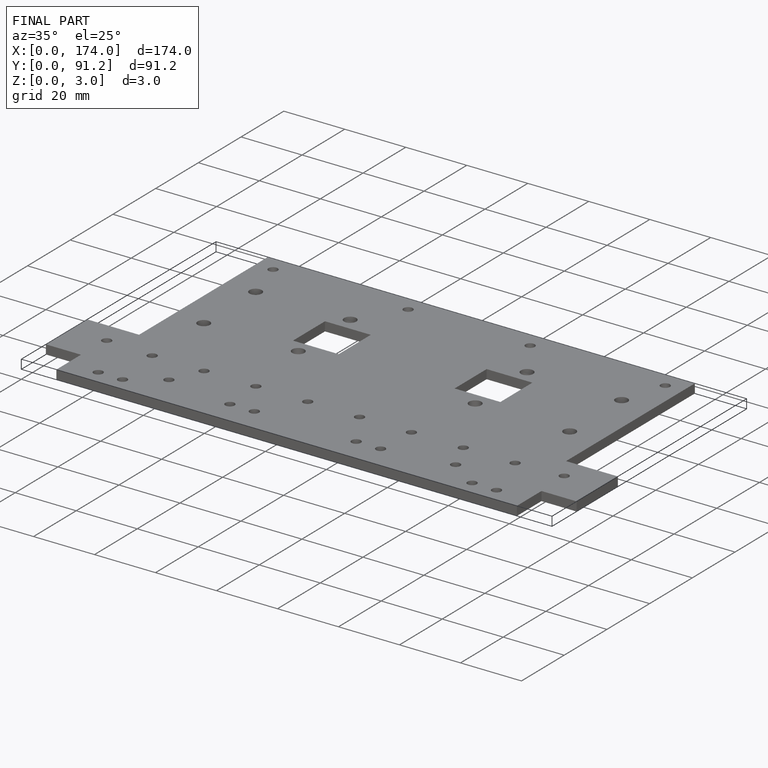
[diagram: finished part — iso view with bounding-box wireframe]
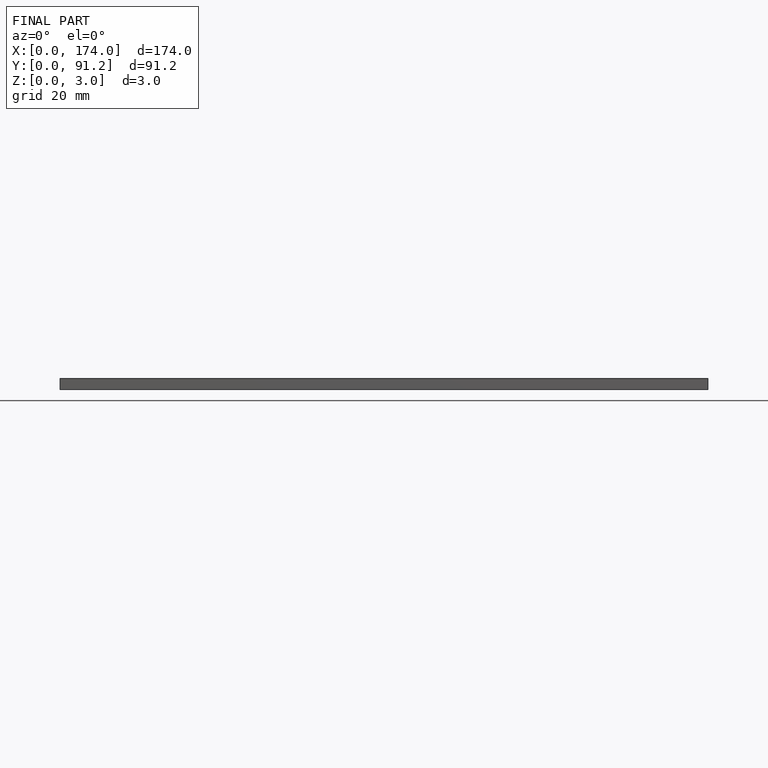
[diagram: finished part — front view with bounding-box wireframe]
